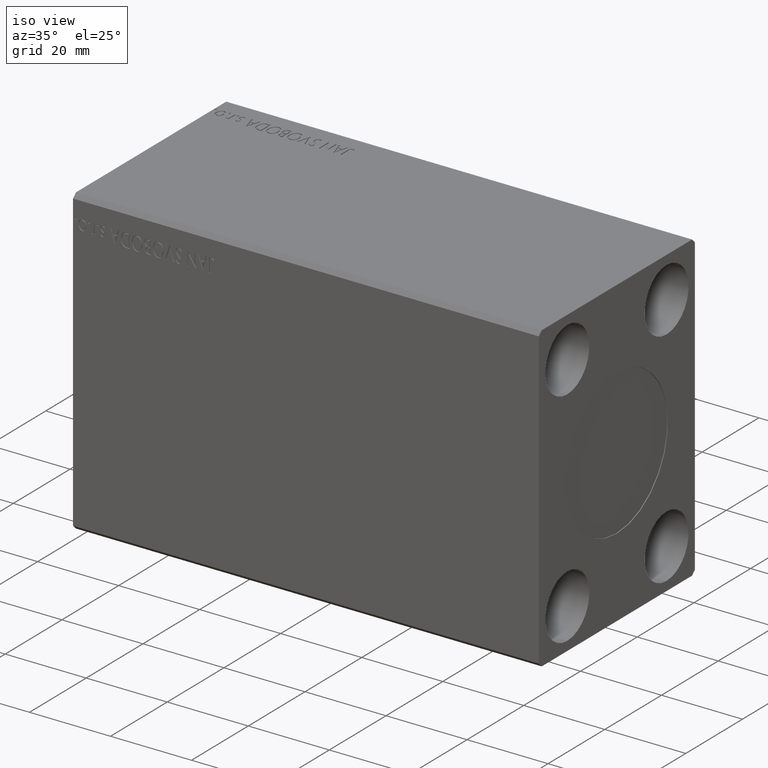
[diagram: clean part render]
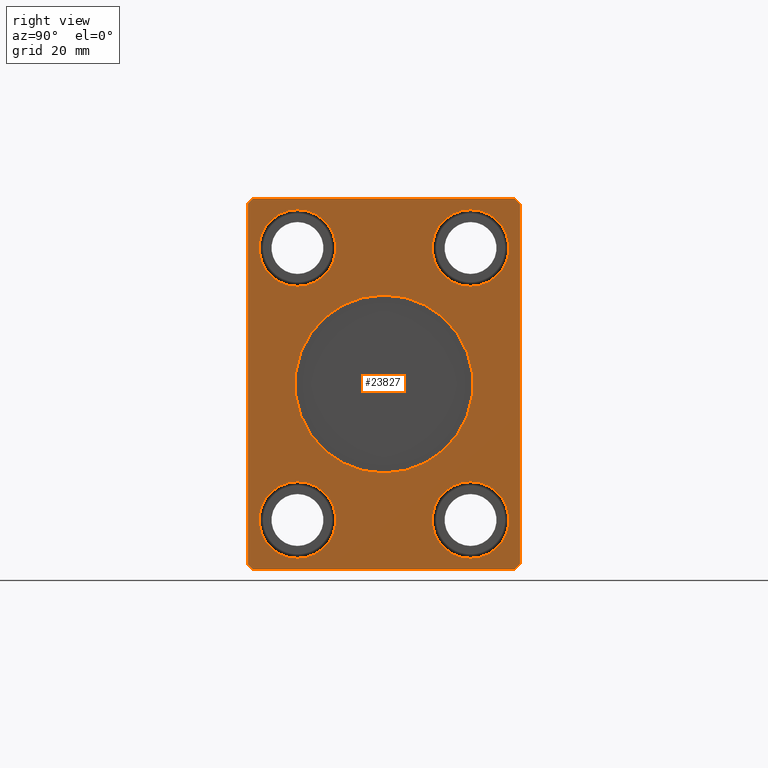
[diagram: tour spotlight — one face highlighted and labeled with its STEP entity id]
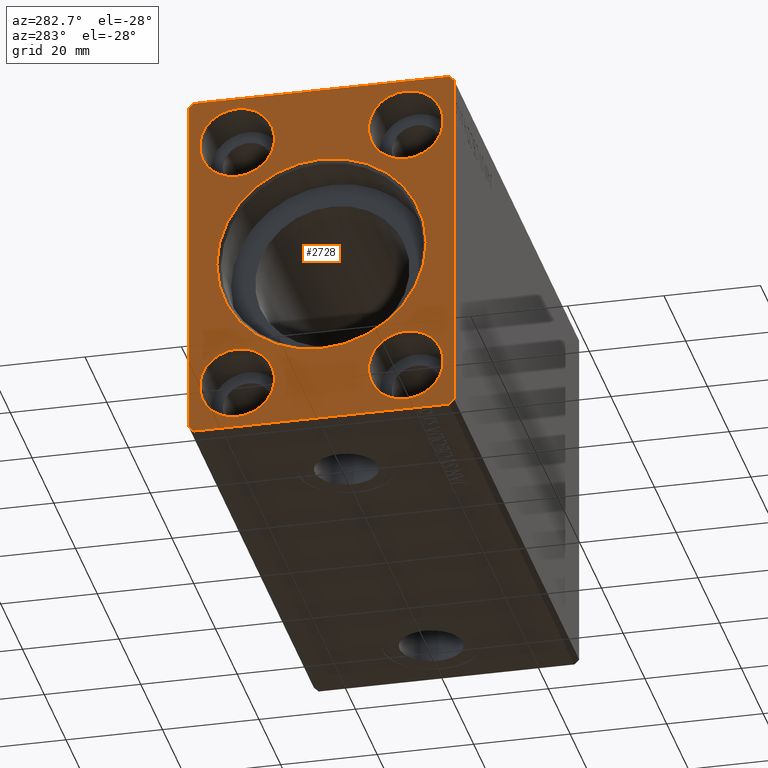
[diagram: tour spotlight — one face highlighted and labeled with its STEP entity id]
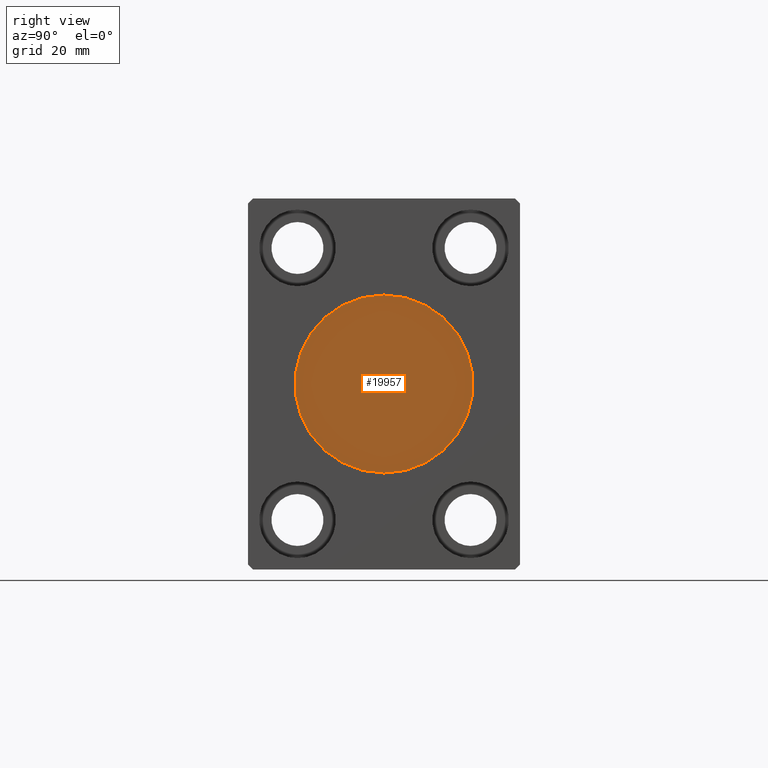
[diagram: tour spotlight — one face highlighted and labeled with its STEP entity id]
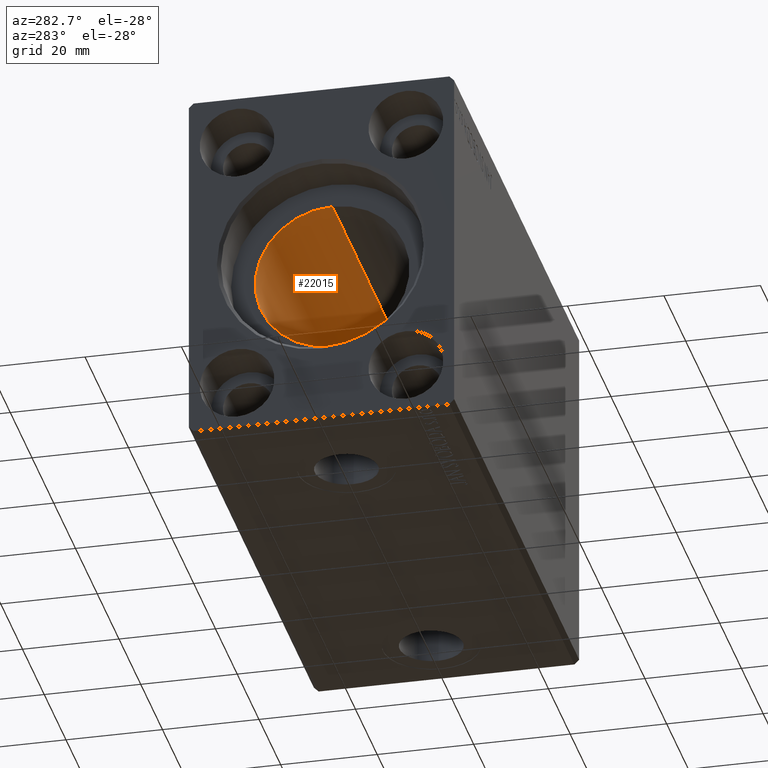
[diagram: tour spotlight — one face highlighted and labeled with its STEP entity id]
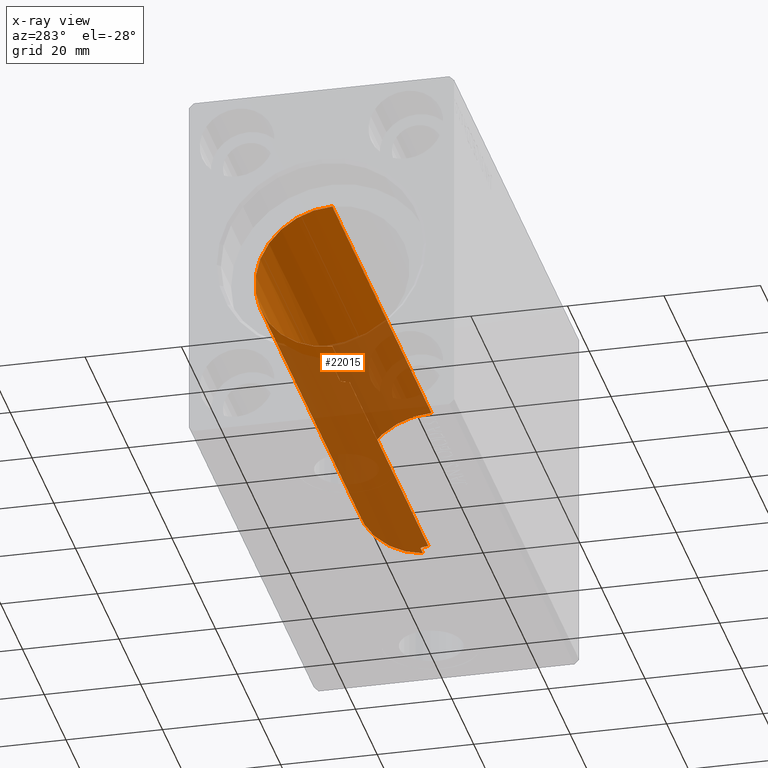
[diagram: x-ray of the same camera — body ghosted, this tour face saturated]
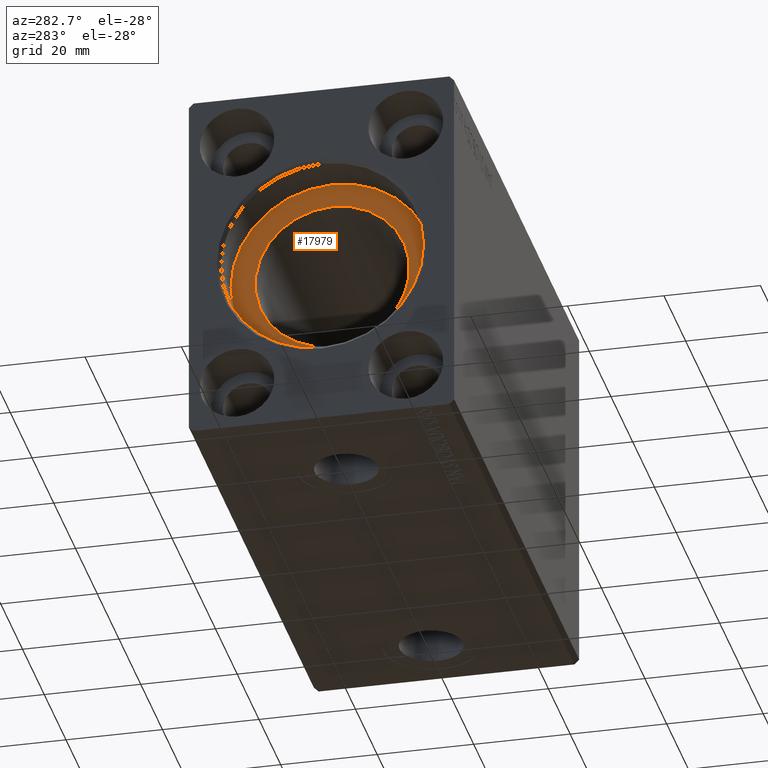
[diagram: tour spotlight — one face highlighted and labeled with its STEP entity id]
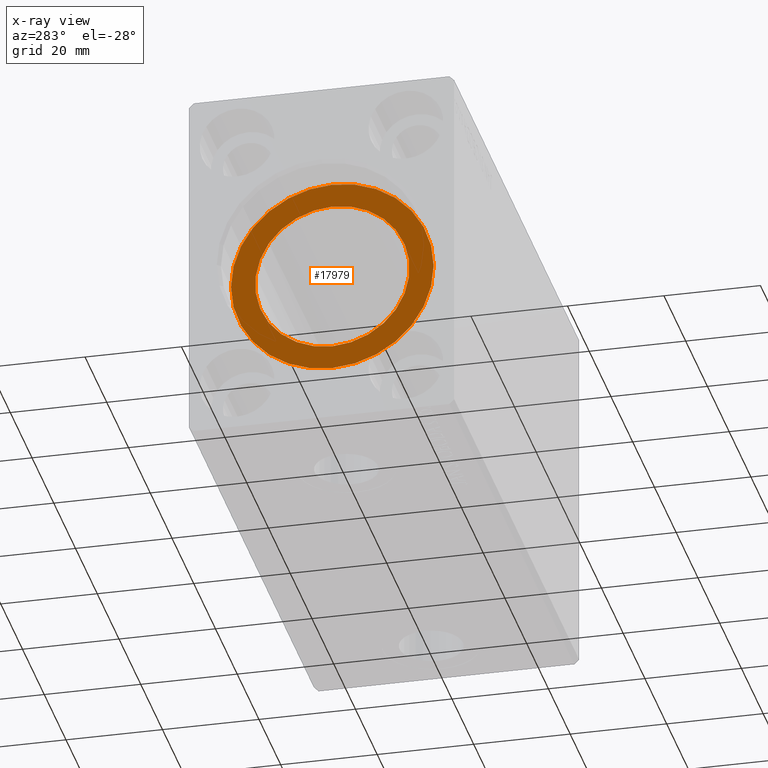
[diagram: x-ray of the same camera — body ghosted, this tour face saturated]
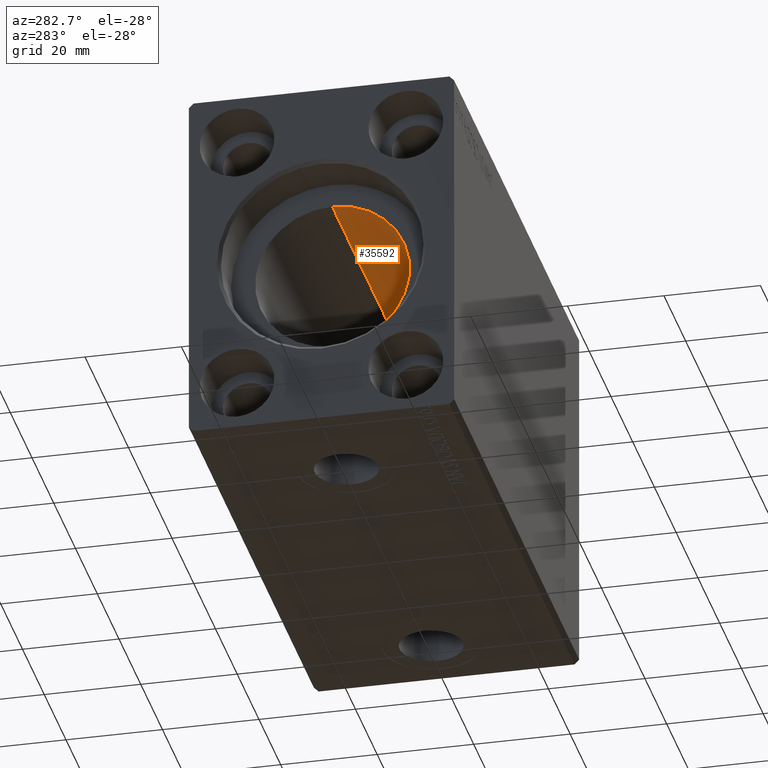
[diagram: tour spotlight — one face highlighted and labeled with its STEP entity id]
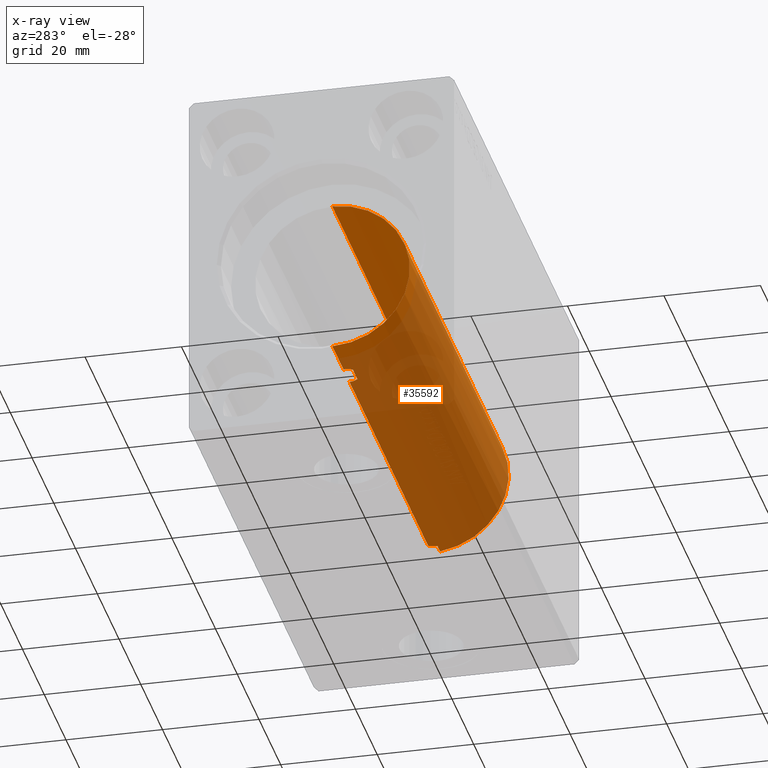
[diagram: x-ray of the same camera — body ghosted, this tour face saturated]
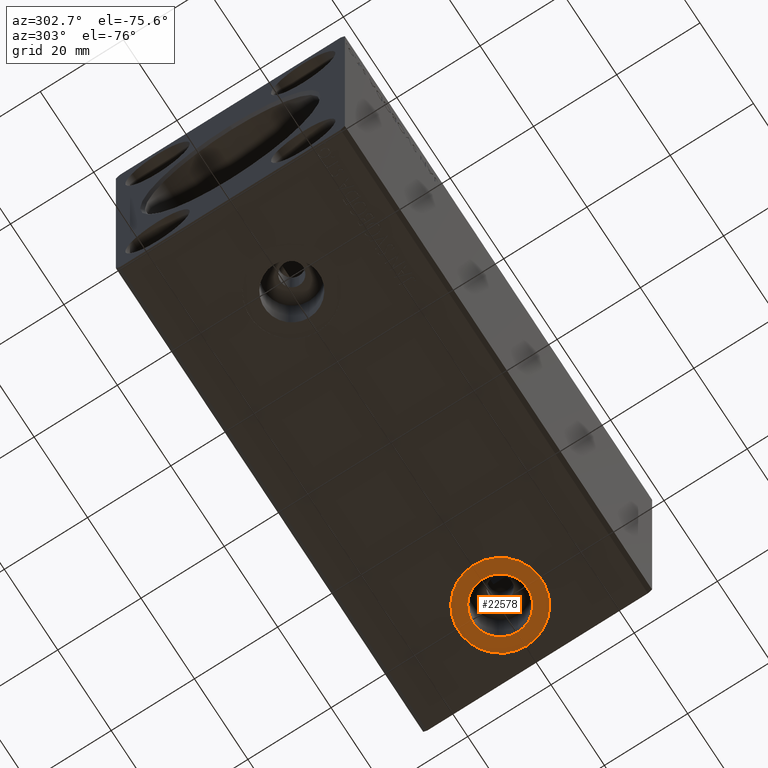
[diagram: tour spotlight — one face highlighted and labeled with its STEP entity id]
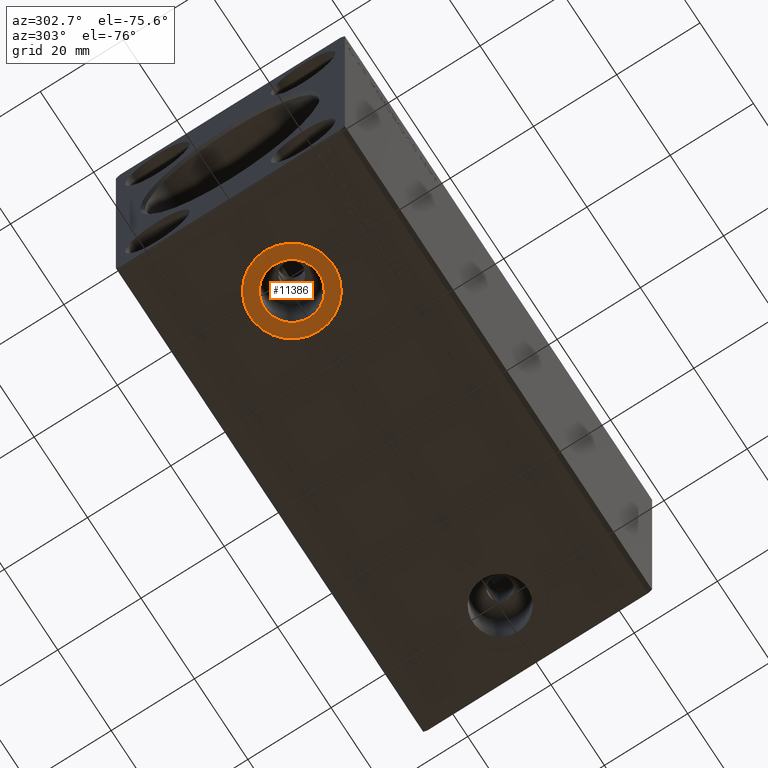
[diagram: tour spotlight — one face highlighted and labeled with its STEP entity id]
A machine part: a face-by-face anatomy tour. The part has 826 B-rep faces; the first image is the clean iso view, then the 8 largest visible faces are spotlighted one at a time (largest first), each with its STEP entity span.

Face 1 — right view, entity #23827. In plain terms, the highlighted planar face has unit normal (1, 0, 0).
Definition (entity closure, byte-faithful):
#112 = VERTEX_POINT ( 'NONE', #20038 ) ;
#336 = EDGE_CURVE ( 'NONE', #21142, #13963, #38318, .T. ) ;
#500 = VECTOR ( 'NONE', #41367, 1000.000000000000114 ) ;
#946 = CARTESIAN_POINT ( 'NONE',  ( 115.0000000000000000, 17.50000000000000000, -27.50000000000000000 ) ) ;
#1375 = EDGE_CURVE ( 'NONE', #31592, #18763, #34211, .T. ) ;
#1508 = VERTEX_POINT ( 'NONE', #32393 ) ;
#1687 = DIRECTION ( 'NONE',  ( 0.000000000000000000, 0.000000000000000000, -1.000000000000000000 ) ) ;
#1843 = DIRECTION ( 'NONE',  ( 0.000000000000000000, -4.752667057470704875E-17, 1.000000000000000000 ) ) ;
#1892 = AXIS2_PLACEMENT_3D ( 'NONE', #16135, #22825, #22605 ) ;
#2057 = AXIS2_PLACEMENT_3D ( 'NONE', #15522, #19182, #38595 ) ;
#2169 = VECTOR ( 'NONE', #37233, 1000.000000000000000 ) ;
#3006 = DIRECTION ( 'NONE',  ( 1.000000000000000000, 0.000000000000000000, 0.000000000000000000 ) ) ;
#3549 = CARTESIAN_POINT ( 'NONE',  ( 115.0000000000000000, -26.50000000000000355, -37.49999999999999289 ) ) ;
#4142 = AXIS2_PLACEMENT_3D ( 'NONE', #35788, #6298, #32572 ) ;
#4162 = DIRECTION ( 'NONE',  ( 1.000000000000000000, 0.000000000000000000, 0.000000000000000000 ) ) ;
#4347 = CARTESIAN_POINT ( 'NONE',  ( 115.0000000000000000, 17.50000000000000000, -19.74999999999999645 ) ) ;
#4723 = LINE ( 'NONE', #14618, #21922 ) ;
#4790 = DIRECTION ( 'NONE',  ( 0.000000000000000000, 0.000000000000000000, -1.000000000000000000 ) ) ;
#5898 = VERTEX_POINT ( 'NONE', #4347 ) ;
#5983 = EDGE_CURVE ( 'NONE', #31625, #34714, #20430, .T. ) ;
#6298 = DIRECTION ( 'NONE',  ( -1.000000000000000000, -0.000000000000000000, -0.000000000000000000 ) ) ;
#6600 = EDGE_CURVE ( 'NONE', #18763, #31592, #41138, .T. ) ;
#6850 = CIRCLE ( 'NONE', #2057, 18.00000000000000000 ) ;
#7085 = EDGE_CURVE ( 'NONE', #34714, #31625, #26655, .T. ) ;
#7287 = FACE_BOUND ( 'NONE', #34602, .T. ) ;
#7492 = CARTESIAN_POINT ( 'NONE',  ( 115.0000000000000000, 17.50000000000000000, 27.50000000000000000 ) ) ;
#8100 = AXIS2_PLACEMENT_3D ( 'NONE', #37517, #34289, #4790 ) ;
#8253 = CARTESIAN_POINT ( 'NONE',  ( 115.0000000000000000, -27.50000000000000355, -36.49999999999998579 ) ) ;
#8544 = ORIENTED_EDGE ( 'NONE', *, *, #9995, .T. ) ;
#8806 = CARTESIAN_POINT ( 'NONE',  ( 115.0000000000000000, -27.50000000000000355, -36.49999999999998579 ) ) ;
#9011 = VECTOR ( 'NONE', #1843, 1000.000000000000000 ) ;
#9272 = ORIENTED_EDGE ( 'NONE', *, *, #21387, .T. ) ;
#9639 = DIRECTION ( 'NONE',  ( 1.000000000000000000, -0.000000000000000000, -0.000000000000000000 ) ) ;
#9995 = EDGE_CURVE ( 'NONE', #21661, #21142, #4723, .T. ) ;
#10337 = AXIS2_PLACEMENT_3D ( 'NONE', #40140, #4162, #39921 ) ;
#10517 = FACE_BOUND ( 'NONE', #17374, .T. ) ;
#10655 = EDGE_CURVE ( 'NONE', #112, #5898, #19890, .T. ) ;
#10684 = ORIENTED_EDGE ( 'NONE', *, *, #16487, .T. ) ;
#11275 = CARTESIAN_POINT ( 'NONE',  ( 115.0000000000000000, -17.50000000000000000, 19.74999999999999645 ) ) ;
#11597 = DIRECTION ( 'NONE',  ( 0.000000000000000000, 4.752667057470705491E-17, -1.000000000000000000 ) ) ;
#11835 = CIRCLE ( 'NONE', #24894, 7.750000000000003553 ) ;
#11937 = ORIENTED_EDGE ( 'NONE', *, *, #26166, .T. ) ;
#12894 = CARTESIAN_POINT ( 'NONE',  ( 115.0000000000000000, 26.50000000000000711, -37.49999999999999289 ) ) ;
#13005 = AXIS2_PLACEMENT_3D ( 'NONE', #946, #14067, #40365 ) ;
#13116 = FACE_BOUND ( 'NONE', #14243, .T. ) ;
#13141 = DIRECTION ( 'NONE',  ( 0.000000000000000000, -0.7071067811865474617, 0.7071067811865474617 ) ) ;
#13735 = CARTESIAN_POINT ( 'NONE',  ( 115.0000000000000000, -26.50000000000000355, -37.49999999999999289 ) ) ;
#13777 = CARTESIAN_POINT ( 'NONE',  ( 115.0000000000000000, -17.50000000000000000, -19.74999999999999645 ) ) ;
#13798 = CIRCLE ( 'NONE', #28940, 7.750000000000003553 ) ;
#13963 = VERTEX_POINT ( 'NONE', #3549 ) ;
#13994 = ORIENTED_EDGE ( 'NONE', *, *, #336, .T. ) ;
#14067 = DIRECTION ( 'NONE',  ( -1.000000000000000000, -0.000000000000000000, -0.000000000000000000 ) ) ;
#14243 = EDGE_LOOP ( 'NONE', ( #18953, #26490 ) ) ;
#14321 = LINE ( 'NONE', #30709, #9011 ) ;
#14435 = CIRCLE ( 'NONE', #4142, 7.750000000000003553 ) ;
#14618 = CARTESIAN_POINT ( 'NONE',  ( 115.0000000000000000, -27.50000000000000711, 36.50000000000000711 ) ) ;
#14808 = DIRECTION ( 'NONE',  ( 1.000000000000000000, -0.000000000000000000, -0.000000000000000000 ) ) ;
#15522 = CARTESIAN_POINT ( 'NONE',  ( 115.0000000000000000, 0.000000000000000000, 0.000000000000000000 ) ) ;
#15935 = CIRCLE ( 'NONE', #10337, 18.00000000000000000 ) ;
#16135 = CARTESIAN_POINT ( 'NONE',  ( 115.0000000000000000, -17.50000000000000000, -27.50000000000000000 ) ) ;
#16487 = EDGE_CURVE ( 'NONE', #24213, #27122, #25664, .T. ) ;
#16619 = ORIENTED_EDGE ( 'NONE', *, *, #10655, .T. ) ;
#16922 = DIRECTION ( 'NONE',  ( 0.000000000000000000, 0.000000000000000000, -1.000000000000000000 ) ) ;
#17231 = VECTOR ( 'NONE', #21581, 1000.000000000000000 ) ;
#17374 = EDGE_LOOP ( 'NONE', ( #40780, #26584 ) ) ;
#18058 = CARTESIAN_POINT ( 'NONE',  ( 115.0000000000000000, -17.50000000000000000, 27.50000000000000000 ) ) ;
#18763 = VERTEX_POINT ( 'NONE', #32262 ) ;
#18953 = ORIENTED_EDGE ( 'NONE', *, *, #6600, .F. ) ;
#19182 = DIRECTION ( 'NONE',  ( 1.000000000000000000, 0.000000000000000000, 0.000000000000000000 ) ) ;
#19224 = ORIENTED_EDGE ( 'NONE', *, *, #31629, .T. ) ;
#19489 = EDGE_LOOP ( 'NONE', ( #11937, #10684, #31325, #8544, #13994, #9272, #30408, #38654 ) ) ;
#19890 = CIRCLE ( 'NONE', #13005, 7.750000000000003553 ) ;
#20038 = CARTESIAN_POINT ( 'NONE',  ( 115.0000000000000000, 17.50000000000000000, -35.25000000000000000 ) ) ;
#20430 = CIRCLE ( 'NONE', #1892, 7.750000000000003553 ) ;
#20659 = CARTESIAN_POINT ( 'NONE',  ( 115.0000000000000000, 26.50000000000000711, -37.49999999999999289 ) ) ;
#20879 = DIRECTION ( 'NONE',  ( 0.000000000000000000, 0.7071067811865474617, 0.7071067811865474617 ) ) ;
#20972 = EDGE_CURVE ( 'NONE', #27122, #21661, #32623, .T. ) ;
#21126 = AXIS2_PLACEMENT_3D ( 'NONE', #7492, #14808, #1687 ) ;
#21142 = VERTEX_POINT ( 'NONE', #8253 ) ;
#21148 = EDGE_CURVE ( 'NONE', #38443, #22247, #13798, .T. ) ;
#21165 = DIRECTION ( 'NONE',  ( 0.000000000000000000, 0.000000000000000000, 1.000000000000000000 ) ) ;
#21387 = EDGE_CURVE ( 'NONE', #13963, #31898, #29907, .T. ) ;
#21452 = EDGE_LOOP ( 'NONE', ( #28886, #34702 ) ) ;
#21581 = DIRECTION ( 'NONE',  ( 0.000000000000000000, -1.000000000000000000, 0.000000000000000000 ) ) ;
#21661 = VERTEX_POINT ( 'NONE', #28579 ) ;
#21871 = EDGE_CURVE ( 'NONE', #1508, #41569, #14321, .T. ) ;
#21922 = VECTOR ( 'NONE', #11597, 1000.000000000000000 ) ;
#22178 = CARTESIAN_POINT ( 'NONE',  ( 115.0000000000000000, 27.50000000000000355, 36.50000000000000711 ) ) ;
#22247 = VERTEX_POINT ( 'NONE', #11275 ) ;
#22531 = AXIS2_PLACEMENT_3D ( 'NONE', #26639, #9639, #16922 ) ;
#22605 = DIRECTION ( 'NONE',  ( 0.000000000000000000, 0.000000000000000000, -1.000000000000000000 ) ) ;
#22640 = CARTESIAN_POINT ( 'NONE',  ( 115.0000000000000000, -17.50000000000000000, -35.25000000000000000 ) ) ;
#22810 = DIRECTION ( 'NONE',  ( 0.000000000000000000, 0.000000000000000000, -1.000000000000000000 ) ) ;
#22825 = DIRECTION ( 'NONE',  ( 1.000000000000000000, -0.000000000000000000, -0.000000000000000000 ) ) ;
#23486 = AXIS2_PLACEMENT_3D ( 'NONE', #40045, #3006, #22810 ) ;
#23827 = ADVANCED_FACE ( 'NONE', ( #10517, #33353, #7287, #36164, #42429, #13116 ), #26886, .T. ) ;
#24213 = VERTEX_POINT ( 'NONE', #37767 ) ;
#24894 = AXIS2_PLACEMENT_3D ( 'NONE', #18058, #30996, #30776 ) ;
#25512 = VECTOR ( 'NONE', #20879, 1000.000000000000114 ) ;
#25664 = LINE ( 'NONE', #28468, #17231 ) ;
#25838 = VERTEX_POINT ( 'NONE', #30627 ) ;
#25930 = CARTESIAN_POINT ( 'NONE',  ( 115.0000000000000000, -26.50000000000000711, 37.50000000000000711 ) ) ;
#26094 = CARTESIAN_POINT ( 'NONE',  ( 115.0000000000000000, 17.50000000000000000, 35.25000000000000000 ) ) ;
#26166 = EDGE_CURVE ( 'NONE', #41569, #24213, #29935, .T. ) ;
#26490 = ORIENTED_EDGE ( 'NONE', *, *, #1375, .F. ) ;
#26584 = ORIENTED_EDGE ( 'NONE', *, *, #38357, .F. ) ;
#26639 = CARTESIAN_POINT ( 'NONE',  ( 115.0000000000000000, 17.50000000000000000, 27.50000000000000000 ) ) ;
#26655 = CIRCLE ( 'NONE', #8100, 7.750000000000003553 ) ;
#26886 = PLANE ( 'NONE',  #23486 ) ;
#27122 = VERTEX_POINT ( 'NONE', #30041 ) ;
#27989 = LINE ( 'NONE', #20659, #25512 ) ;
#28468 = CARTESIAN_POINT ( 'NONE',  ( 115.0000000000000000, 26.50000000000000355, 37.50000000000000711 ) ) ;
#28579 = CARTESIAN_POINT ( 'NONE',  ( 115.0000000000000000, -27.50000000000000711, 36.50000000000000711 ) ) ;
#28886 = ORIENTED_EDGE ( 'NONE', *, *, #5983, .F. ) ;
#28940 = AXIS2_PLACEMENT_3D ( 'NONE', #30881, #37342, #21165 ) ;
#29907 = LINE ( 'NONE', #13735, #2169 ) ;
#29935 = LINE ( 'NONE', #30138, #30142 ) ;
#30041 = CARTESIAN_POINT ( 'NONE',  ( 115.0000000000000000, -26.50000000000000711, 37.50000000000000711 ) ) ;
#30138 = CARTESIAN_POINT ( 'NONE',  ( 115.0000000000000000, 27.50000000000000355, 36.50000000000000711 ) ) ;
#30142 = VECTOR ( 'NONE', #13141, 1000.000000000000114 ) ;
#30408 = ORIENTED_EDGE ( 'NONE', *, *, #34817, .T. ) ;
#30627 = CARTESIAN_POINT ( 'NONE',  ( 115.0000000000000000, 2.204364238465235428E-15, 18.00000000000000000 ) ) ;
#30663 = EDGE_CURVE ( 'NONE', #38374, #25838, #6850, .T. ) ;
#30709 = CARTESIAN_POINT ( 'NONE',  ( 115.0000000000000000, 27.50000000000000711, -36.49999999999999289 ) ) ;
#30776 = DIRECTION ( 'NONE',  ( 0.000000000000000000, 0.000000000000000000, 1.000000000000000000 ) ) ;
#30881 = CARTESIAN_POINT ( 'NONE',  ( 115.0000000000000000, -17.50000000000000000, 27.50000000000000000 ) ) ;
#30996 = DIRECTION ( 'NONE',  ( -1.000000000000000000, -0.000000000000000000, -0.000000000000000000 ) ) ;
#31325 = ORIENTED_EDGE ( 'NONE', *, *, #20972, .T. ) ;
#31592 = VERTEX_POINT ( 'NONE', #26094 ) ;
#31625 = VERTEX_POINT ( 'NONE', #22640 ) ;
#31629 = EDGE_CURVE ( 'NONE', #5898, #112, #14435, .T. ) ;
#31694 = ORIENTED_EDGE ( 'NONE', *, *, #41778, .T. ) ;
#31898 = VERTEX_POINT ( 'NONE', #12894 ) ;
#32262 = CARTESIAN_POINT ( 'NONE',  ( 115.0000000000000000, 17.50000000000000000, 19.74999999999999645 ) ) ;
#32393 = CARTESIAN_POINT ( 'NONE',  ( 115.0000000000000000, 27.50000000000000711, -36.49999999999999289 ) ) ;
#32572 = DIRECTION ( 'NONE',  ( 0.000000000000000000, 0.000000000000000000, 1.000000000000000000 ) ) ;
#32623 = LINE ( 'NONE', #25930, #38568 ) ;
#33353 = FACE_BOUND ( 'NONE', #35941, .T. ) ;
#33662 = CARTESIAN_POINT ( 'NONE',  ( 115.0000000000000000, 0.000000000000000000, -18.00000000000000000 ) ) ;
#34211 = CIRCLE ( 'NONE', #21126, 7.750000000000003553 ) ;
#34289 = DIRECTION ( 'NONE',  ( 1.000000000000000000, -0.000000000000000000, -0.000000000000000000 ) ) ;
#34602 = EDGE_LOOP ( 'NONE', ( #16619, #19224 ) ) ;
#34702 = ORIENTED_EDGE ( 'NONE', *, *, #7085, .F. ) ;
#34714 = VERTEX_POINT ( 'NONE', #13777 ) ;
#34817 = EDGE_CURVE ( 'NONE', #31898, #1508, #27989, .T. ) ;
#35788 = CARTESIAN_POINT ( 'NONE',  ( 115.0000000000000000, 17.50000000000000000, -27.50000000000000000 ) ) ;
#35845 = DIRECTION ( 'NONE',  ( 0.000000000000000000, -0.7071067811865474617, -0.7071067811865474617 ) ) ;
#35941 = EDGE_LOOP ( 'NONE', ( #31694, #42286 ) ) ;
#36164 = FACE_OUTER_BOUND ( 'NONE', #19489, .T. ) ;
#37233 = DIRECTION ( 'NONE',  ( 0.000000000000000000, 1.000000000000000000, 0.000000000000000000 ) ) ;
#37342 = DIRECTION ( 'NONE',  ( -1.000000000000000000, -0.000000000000000000, -0.000000000000000000 ) ) ;
#37517 = CARTESIAN_POINT ( 'NONE',  ( 115.0000000000000000, -17.50000000000000000, -27.50000000000000000 ) ) ;
#37767 = CARTESIAN_POINT ( 'NONE',  ( 115.0000000000000000, 26.50000000000000355, 37.50000000000000711 ) ) ;
#38318 = LINE ( 'NONE', #8806, #500 ) ;
#38357 = EDGE_CURVE ( 'NONE', #25838, #38374, #15935, .T. ) ;
#38374 = VERTEX_POINT ( 'NONE', #33662 ) ;
#38443 = VERTEX_POINT ( 'NONE', #41841 ) ;
#38568 = VECTOR ( 'NONE', #35845, 1000.000000000000114 ) ;
#38595 = DIRECTION ( 'NONE',  ( 0.000000000000000000, 0.000000000000000000, -1.000000000000000000 ) ) ;
#38654 = ORIENTED_EDGE ( 'NONE', *, *, #21871, .T. ) ;
#39921 = DIRECTION ( 'NONE',  ( 0.000000000000000000, 0.000000000000000000, -1.000000000000000000 ) ) ;
#40045 = CARTESIAN_POINT ( 'NONE',  ( 115.0000000000000000, 0.000000000000000000, 0.000000000000000000 ) ) ;
#40140 = CARTESIAN_POINT ( 'NONE',  ( 115.0000000000000000, 0.000000000000000000, 0.000000000000000000 ) ) ;
#40365 = DIRECTION ( 'NONE',  ( 0.000000000000000000, 0.000000000000000000, 1.000000000000000000 ) ) ;
#40780 = ORIENTED_EDGE ( 'NONE', *, *, #30663, .F. ) ;
#41138 = CIRCLE ( 'NONE', #22531, 7.750000000000003553 ) ;
#41367 = DIRECTION ( 'NONE',  ( 0.000000000000000000, 0.7071067811865451302, -0.7071067811865500152 ) ) ;
#41569 = VERTEX_POINT ( 'NONE', #22178 ) ;
#41778 = EDGE_CURVE ( 'NONE', #22247, #38443, #11835, .T. ) ;
#41841 = CARTESIAN_POINT ( 'NONE',  ( 115.0000000000000000, -17.50000000000000000, 35.25000000000000000 ) ) ;
#42286 = ORIENTED_EDGE ( 'NONE', *, *, #21148, .T. ) ;
#42429 = FACE_BOUND ( 'NONE', #21452, .T. ) ;

Face 2 — auxiliary view, entity #2728. In plain terms, the highlighted planar face has unit normal (1, 0, 0).
Definition (entity closure, byte-faithful):
#185 = FACE_BOUND ( 'NONE', #6855, .T. ) ;
#375 = VERTEX_POINT ( 'NONE', #25180 ) ;
#944 = CARTESIAN_POINT ( 'NONE',  ( 0.000000000000000000, -26.50000000000000355, -37.49999999999999289 ) ) ;
#1136 = EDGE_CURVE ( 'NONE', #30371, #36174, #40417, .T. ) ;
#1171 = AXIS2_PLACEMENT_3D ( 'NONE', #2373, #15491, #17716 ) ;
#1398 = VERTEX_POINT ( 'NONE', #17817 ) ;
#1469 = VERTEX_POINT ( 'NONE', #36245 ) ;
#2211 = CARTESIAN_POINT ( 'NONE',  ( 0.000000000000000000, 0.000000000000000000, 0.000000000000000000 ) ) ;
#2307 = CARTESIAN_POINT ( 'NONE',  ( 0.000000000000000000, 17.50000000000000000, -35.25000000000000000 ) ) ;
#2373 = CARTESIAN_POINT ( 'NONE',  ( 0.000000000000000000, 17.50000000000000000, 27.50000000000000000 ) ) ;
#2464 = EDGE_CURVE ( 'NONE', #36174, #30371, #40324, .T. ) ;
#2532 = ORIENTED_EDGE ( 'NONE', *, *, #22175, .F. ) ;
#2565 = FACE_OUTER_BOUND ( 'NONE', #31330, .T. ) ;
#2728 = ADVANCED_FACE ( 'NONE', ( #38961, #9878, #32076, #2565, #185, #16534 ), #15907, .F. ) ;
#4392 = CARTESIAN_POINT ( 'NONE',  ( 0.000000000000000000, -26.50000000000000355, -37.49999999999999289 ) ) ;
#4613 = DIRECTION ( 'NONE',  ( 0.000000000000000000, 4.752667057470705491E-17, -1.000000000000000000 ) ) ;
#4917 = CIRCLE ( 'NONE', #28978, 7.750000000000003553 ) ;
#4970 = EDGE_CURVE ( 'NONE', #15717, #8747, #6688, .T. ) ;
#5041 = EDGE_CURVE ( 'NONE', #10918, #22828, #8737, .T. ) ;
#5050 = DIRECTION ( 'NONE',  ( 0.000000000000000000, 1.000000000000000000, 0.000000000000000000 ) ) ;
#5103 = CARTESIAN_POINT ( 'NONE',  ( 0.000000000000000000, -26.50000000000000711, 37.50000000000000711 ) ) ;
#5439 = DIRECTION ( 'NONE',  ( 1.000000000000000000, 0.000000000000000000, 0.000000000000000000 ) ) ;
#5631 = CIRCLE ( 'NONE', #41434, 7.750000000000003553 ) ;
#5755 = CARTESIAN_POINT ( 'NONE',  ( 0.000000000000000000, -27.50000000000000711, 36.50000000000000711 ) ) ;
#5805 = DIRECTION ( 'NONE',  ( 0.000000000000000000, 0.000000000000000000, -1.000000000000000000 ) ) ;
#5818 = CARTESIAN_POINT ( 'NONE',  ( 0.000000000000000000, 17.50000000000000000, -27.50000000000000000 ) ) ;
#5825 = DIRECTION ( 'NONE',  ( 0.000000000000000000, 0.000000000000000000, 1.000000000000000000 ) ) ;
#6086 = EDGE_CURVE ( 'NONE', #33100, #20528, #31168, .T. ) ;
#6206 = EDGE_CURVE ( 'NONE', #18080, #33100, #35868, .T. ) ;
#6526 = ORIENTED_EDGE ( 'NONE', *, *, #6206, .F. ) ;
#6688 = CIRCLE ( 'NONE', #1171, 7.750000000000003553 ) ;
#6798 = ORIENTED_EDGE ( 'NONE', *, *, #13360, .F. ) ;
#6855 = EDGE_LOOP ( 'NONE', ( #33504, #20320 ) ) ;
#7401 = LINE ( 'NONE', #24209, #27461 ) ;
#7672 = CARTESIAN_POINT ( 'NONE',  ( 0.000000000000000000, -17.50000000000000000, 27.50000000000000000 ) ) ;
#8042 = CARTESIAN_POINT ( 'NONE',  ( 0.000000000000000000, 26.50000000000000355, 37.50000000000000711 ) ) ;
#8112 = CARTESIAN_POINT ( 'NONE',  ( 0.000000000000000000, -26.50000000000000711, 37.50000000000000711 ) ) ;
#8269 = CIRCLE ( 'NONE', #21325, 7.750000000000003553 ) ;
#8339 = CARTESIAN_POINT ( 'NONE',  ( 0.000000000000000000, 17.50000000000000000, 35.25000000000000000 ) ) ;
#8737 = CIRCLE ( 'NONE', #11507, 7.750000000000003553 ) ;
#8747 = VERTEX_POINT ( 'NONE', #41937 ) ;
#8900 = AXIS2_PLACEMENT_3D ( 'NONE', #21803, #11271, #24403 ) ;
#8942 = CARTESIAN_POINT ( 'NONE',  ( 0.000000000000000000, 26.50000000000000355, 37.50000000000000711 ) ) ;
#9072 = ORIENTED_EDGE ( 'NONE', *, *, #6086, .F. ) ;
#9361 = CARTESIAN_POINT ( 'NONE',  ( 0.000000000000000000, 26.50000000000000711, -37.49999999999999289 ) ) ;
#9535 = VERTEX_POINT ( 'NONE', #20256 ) ;
#9680 = DIRECTION ( 'NONE',  ( 0.000000000000000000, 0.000000000000000000, 1.000000000000000000 ) ) ;
#9878 = FACE_BOUND ( 'NONE', #38248, .T. ) ;
#10056 = AXIS2_PLACEMENT_3D ( 'NONE', #2211, #5439, #18560 ) ;
#10066 = LINE ( 'NONE', #26442, #36485 ) ;
#10638 = EDGE_CURVE ( 'NONE', #20528, #37433, #7401, .T. ) ;
#10918 = VERTEX_POINT ( 'NONE', #32900 ) ;
#11023 = ORIENTED_EDGE ( 'NONE', *, *, #1136, .T. ) ;
#11271 = DIRECTION ( 'NONE',  ( -1.000000000000000000, 0.000000000000000000, 0.000000000000000000 ) ) ;
#11507 = AXIS2_PLACEMENT_3D ( 'NONE', #5818, #35742, #9680 ) ;
#11867 = VERTEX_POINT ( 'NONE', #30101 ) ;
#13348 = ORIENTED_EDGE ( 'NONE', *, *, #5041, .F. ) ;
#13360 = EDGE_CURVE ( 'NONE', #1469, #18080, #16857, .T. ) ;
#14030 = VERTEX_POINT ( 'NONE', #944 ) ;
#15318 = LINE ( 'NONE', #28668, #37880 ) ;
#15491 = DIRECTION ( 'NONE',  ( 1.000000000000000000, -0.000000000000000000, -0.000000000000000000 ) ) ;
#15717 = VERTEX_POINT ( 'NONE', #8339 ) ;
#15907 = PLANE ( 'NONE',  #24518 ) ;
#16199 = ORIENTED_EDGE ( 'NONE', *, *, #42186, .F. ) ;
#16534 = FACE_BOUND ( 'NONE', #22934, .T. ) ;
#16857 = LINE ( 'NONE', #40154, #28204 ) ;
#17140 = CARTESIAN_POINT ( 'NONE',  ( 0.000000000000000000, -27.50000000000000355, -36.49999999999998579 ) ) ;
#17199 = ORIENTED_EDGE ( 'NONE', *, *, #37402, .F. ) ;
#17316 = EDGE_CURVE ( 'NONE', #11867, #1398, #4917, .T. ) ;
#17441 = DIRECTION ( 'NONE',  ( 0.000000000000000000, 0.000000000000000000, -1.000000000000000000 ) ) ;
#17644 = ORIENTED_EDGE ( 'NONE', *, *, #30145, .F. ) ;
#17716 = DIRECTION ( 'NONE',  ( 0.000000000000000000, 0.000000000000000000, -1.000000000000000000 ) ) ;
#17817 = CARTESIAN_POINT ( 'NONE',  ( 0.000000000000000000, -17.50000000000000000, -19.74999999999999645 ) ) ;
#17959 = VECTOR ( 'NONE', #5050, 1000.000000000000000 ) ;
#18080 = VERTEX_POINT ( 'NONE', #8042 ) ;
#18380 = EDGE_CURVE ( 'NONE', #20665, #9535, #37931, .T. ) ;
#18560 = DIRECTION ( 'NONE',  ( 0.000000000000000000, 0.000000000000000000, -1.000000000000000000 ) ) ;
#18690 = DIRECTION ( 'NONE',  ( 0.000000000000000000, 0.000000000000000000, -1.000000000000000000 ) ) ;
#18791 = ORIENTED_EDGE ( 'NONE', *, *, #37067, .F. ) ;
#19337 = AXIS2_PLACEMENT_3D ( 'NONE', #28235, #21558, #5825 ) ;
#19344 = AXIS2_PLACEMENT_3D ( 'NONE', #38445, #42545, #28538 ) ;
#19485 = DIRECTION ( 'NONE',  ( 0.000000000000000000, -1.000000000000000000, 0.000000000000000000 ) ) ;
#20028 = VECTOR ( 'NONE', #31483, 1000.000000000000114 ) ;
#20256 = CARTESIAN_POINT ( 'NONE',  ( 0.000000000000000000, -17.50000000000000000, 35.25000000000000000 ) ) ;
#20320 = ORIENTED_EDGE ( 'NONE', *, *, #17316, .T. ) ;
#20528 = VERTEX_POINT ( 'NONE', #5755 ) ;
#20665 = VERTEX_POINT ( 'NONE', #39975 ) ;
#20797 = DIRECTION ( 'NONE',  ( -1.000000000000000000, 0.000000000000000000, 0.000000000000000000 ) ) ;
#21235 = ORIENTED_EDGE ( 'NONE', *, *, #2464, .T. ) ;
#21325 = AXIS2_PLACEMENT_3D ( 'NONE', #35060, #39141, #18690 ) ;
#21357 = LINE ( 'NONE', #28251, #20028 ) ;
#21558 = DIRECTION ( 'NONE',  ( -1.000000000000000000, 0.000000000000000000, 0.000000000000000000 ) ) ;
#21699 = CARTESIAN_POINT ( 'NONE',  ( 0.000000000000000000, 0.000000000000000000, 21.70000000000003837 ) ) ;
#21803 = CARTESIAN_POINT ( 'NONE',  ( 0.000000000000000000, 17.50000000000000000, -27.50000000000000000 ) ) ;
#21988 = DIRECTION ( 'NONE',  ( 0.000000000000000000, 0.7071067811865474617, 0.7071067811865474617 ) ) ;
#22175 = EDGE_CURVE ( 'NONE', #14030, #25171, #41013, .T. ) ;
#22828 = VERTEX_POINT ( 'NONE', #2307 ) ;
#22934 = EDGE_LOOP ( 'NONE', ( #38107, #34281 ) ) ;
#23206 = VECTOR ( 'NONE', #25104, 1000.000000000000114 ) ;
#24209 = CARTESIAN_POINT ( 'NONE',  ( 0.000000000000000000, -27.50000000000000711, 36.50000000000000711 ) ) ;
#24403 = DIRECTION ( 'NONE',  ( 0.000000000000000000, 0.000000000000000000, 1.000000000000000000 ) ) ;
#24518 = AXIS2_PLACEMENT_3D ( 'NONE', #29704, #32515, #5805 ) ;
#24552 = DIRECTION ( 'NONE',  ( 1.000000000000000000, 0.000000000000000000, 0.000000000000000000 ) ) ;
#25104 = DIRECTION ( 'NONE',  ( 0.000000000000000000, -0.7071067811865474617, -0.7071067811865474617 ) ) ;
#25171 = VERTEX_POINT ( 'NONE', #9361 ) ;
#25180 = CARTESIAN_POINT ( 'NONE',  ( 0.000000000000000000, 27.50000000000000711, -36.49999999999999289 ) ) ;
#26442 = CARTESIAN_POINT ( 'NONE',  ( 0.000000000000000000, 27.50000000000000711, -36.49999999999999289 ) ) ;
#26522 = DIRECTION ( 'NONE',  ( 1.000000000000000000, -0.000000000000000000, -0.000000000000000000 ) ) ;
#27381 = CARTESIAN_POINT ( 'NONE',  ( 0.000000000000000000, 2.657483554149761471E-15, -21.70000000000003837 ) ) ;
#27461 = VECTOR ( 'NONE', #4613, 1000.000000000000000 ) ;
#27580 = CARTESIAN_POINT ( 'NONE',  ( 0.000000000000000000, 0.000000000000000000, 0.000000000000000000 ) ) ;
#27784 = ORIENTED_EDGE ( 'NONE', *, *, #18380, .F. ) ;
#28026 = AXIS2_PLACEMENT_3D ( 'NONE', #27580, #24552, #17441 ) ;
#28204 = VECTOR ( 'NONE', #30667, 1000.000000000000114 ) ;
#28235 = CARTESIAN_POINT ( 'NONE',  ( 0.000000000000000000, -17.50000000000000000, 27.50000000000000000 ) ) ;
#28251 = CARTESIAN_POINT ( 'NONE',  ( 0.000000000000000000, -27.50000000000000355, -36.49999999999998579 ) ) ;
#28538 = DIRECTION ( 'NONE',  ( 0.000000000000000000, 0.000000000000000000, -1.000000000000000000 ) ) ;
#28668 = CARTESIAN_POINT ( 'NONE',  ( 0.000000000000000000, 26.50000000000000711, -37.49999999999999289 ) ) ;
#28978 = AXIS2_PLACEMENT_3D ( 'NONE', #29333, #26522, #29963 ) ;
#29333 = CARTESIAN_POINT ( 'NONE',  ( 0.000000000000000000, -17.50000000000000000, -27.50000000000000000 ) ) ;
#29704 = CARTESIAN_POINT ( 'NONE',  ( 0.000000000000000000, 0.000000000000000000, 0.000000000000000000 ) ) ;
#29963 = DIRECTION ( 'NONE',  ( 0.000000000000000000, 0.000000000000000000, -1.000000000000000000 ) ) ;
#30040 = ORIENTED_EDGE ( 'NONE', *, *, #10638, .F. ) ;
#30101 = CARTESIAN_POINT ( 'NONE',  ( 0.000000000000000000, -17.50000000000000000, -35.25000000000000000 ) ) ;
#30145 = EDGE_CURVE ( 'NONE', #22828, #10918, #33654, .T. ) ;
#30371 = VERTEX_POINT ( 'NONE', #21699 ) ;
#30667 = DIRECTION ( 'NONE',  ( 0.000000000000000000, -0.7071067811865474617, 0.7071067811865474617 ) ) ;
#31168 = LINE ( 'NONE', #5103, #23206 ) ;
#31330 = EDGE_LOOP ( 'NONE', ( #6798, #17199, #37796, #2532, #18791, #30040, #9072, #6526 ) ) ;
#31483 = DIRECTION ( 'NONE',  ( 0.000000000000000000, 0.7071067811865451302, -0.7071067811865500152 ) ) ;
#32076 = FACE_BOUND ( 'NONE', #36573, .T. ) ;
#32515 = DIRECTION ( 'NONE',  ( 1.000000000000000000, 0.000000000000000000, 0.000000000000000000 ) ) ;
#32900 = CARTESIAN_POINT ( 'NONE',  ( 0.000000000000000000, 17.50000000000000000, -19.74999999999999645 ) ) ;
#32935 = EDGE_CURVE ( 'NONE', #1398, #11867, #8269, .T. ) ;
#33100 = VERTEX_POINT ( 'NONE', #8112 ) ;
#33504 = ORIENTED_EDGE ( 'NONE', *, *, #32935, .T. ) ;
#33654 = CIRCLE ( 'NONE', #8900, 7.750000000000003553 ) ;
#34238 = VECTOR ( 'NONE', #19485, 1000.000000000000000 ) ;
#34281 = ORIENTED_EDGE ( 'NONE', *, *, #40182, .T. ) ;
#35060 = CARTESIAN_POINT ( 'NONE',  ( 0.000000000000000000, -17.50000000000000000, -27.50000000000000000 ) ) ;
#35742 = DIRECTION ( 'NONE',  ( -1.000000000000000000, 0.000000000000000000, 0.000000000000000000 ) ) ;
#35868 = LINE ( 'NONE', #8942, #34238 ) ;
#36174 = VERTEX_POINT ( 'NONE', #27381 ) ;
#36245 = CARTESIAN_POINT ( 'NONE',  ( 0.000000000000000000, 27.50000000000000355, 36.50000000000000711 ) ) ;
#36485 = VECTOR ( 'NONE', #39795, 1000.000000000000000 ) ;
#36573 = EDGE_LOOP ( 'NONE', ( #11023, #21235 ) ) ;
#36621 = EDGE_LOOP ( 'NONE', ( #16199, #27784 ) ) ;
#37067 = EDGE_CURVE ( 'NONE', #37433, #14030, #21357, .T. ) ;
#37402 = EDGE_CURVE ( 'NONE', #375, #1469, #10066, .T. ) ;
#37433 = VERTEX_POINT ( 'NONE', #17140 ) ;
#37796 = ORIENTED_EDGE ( 'NONE', *, *, #37833, .F. ) ;
#37833 = EDGE_CURVE ( 'NONE', #25171, #375, #15318, .T. ) ;
#37880 = VECTOR ( 'NONE', #21988, 1000.000000000000114 ) ;
#37931 = CIRCLE ( 'NONE', #19337, 7.750000000000003553 ) ;
#38107 = ORIENTED_EDGE ( 'NONE', *, *, #4970, .T. ) ;
#38248 = EDGE_LOOP ( 'NONE', ( #13348, #17644 ) ) ;
#38445 = CARTESIAN_POINT ( 'NONE',  ( 0.000000000000000000, 17.50000000000000000, 27.50000000000000000 ) ) ;
#38624 = DIRECTION ( 'NONE',  ( 0.000000000000000000, 0.000000000000000000, 1.000000000000000000 ) ) ;
#38961 = FACE_BOUND ( 'NONE', #36621, .T. ) ;
#39141 = DIRECTION ( 'NONE',  ( 1.000000000000000000, -0.000000000000000000, -0.000000000000000000 ) ) ;
#39795 = DIRECTION ( 'NONE',  ( 0.000000000000000000, -4.752667057470704875E-17, 1.000000000000000000 ) ) ;
#39975 = CARTESIAN_POINT ( 'NONE',  ( 0.000000000000000000, -17.50000000000000000, 19.74999999999999645 ) ) ;
#40154 = CARTESIAN_POINT ( 'NONE',  ( 0.000000000000000000, 27.50000000000000355, 36.50000000000000711 ) ) ;
#40182 = EDGE_CURVE ( 'NONE', #8747, #15717, #40685, .T. ) ;
#40324 = CIRCLE ( 'NONE', #10056, 21.70000000000003837 ) ;
#40417 = CIRCLE ( 'NONE', #28026, 21.70000000000003837 ) ;
#40685 = CIRCLE ( 'NONE', #19344, 7.750000000000003553 ) ;
#41013 = LINE ( 'NONE', #4392, #17959 ) ;
#41434 = AXIS2_PLACEMENT_3D ( 'NONE', #7672, #20797, #38624 ) ;
#41937 = CARTESIAN_POINT ( 'NONE',  ( 0.000000000000000000, 17.50000000000000000, 19.74999999999999645 ) ) ;
#42186 = EDGE_CURVE ( 'NONE', #9535, #20665, #5631, .T. ) ;
#42545 = DIRECTION ( 'NONE',  ( 1.000000000000000000, -0.000000000000000000, -0.000000000000000000 ) ) ;

Face 3 — right view, entity #19957. In plain terms, the highlighted planar face has unit normal (1, 0, 0).
Definition (entity closure, byte-faithful):
#2591 = AXIS2_PLACEMENT_3D ( 'NONE', #38301, #25598, #9426 ) ;
#3361 = PLANE ( 'NONE',  #10424 ) ;
#6488 = EDGE_CURVE ( 'NONE', #35306, #34338, #42518, .T. ) ;
#7427 = DIRECTION ( 'NONE',  ( 0.000000000000000000, 0.000000000000000000, -1.000000000000000000 ) ) ;
#9426 = DIRECTION ( 'NONE',  ( 0.000000000000000000, 0.000000000000000000, -1.000000000000000000 ) ) ;
#10424 = AXIS2_PLACEMENT_3D ( 'NONE', #16477, #34527, #7427 ) ;
#11697 = DIRECTION ( 'NONE',  ( 1.000000000000000000, 0.000000000000000000, 0.000000000000000000 ) ) ;
#15987 = EDGE_LOOP ( 'NONE', ( #20365, #32759 ) ) ;
#16215 = AXIS2_PLACEMENT_3D ( 'NONE', #24198, #11697, #34746 ) ;
#16477 = CARTESIAN_POINT ( 'NONE',  ( 114.7999999999999972, 0.000000000000000000, 0.000000000000000000 ) ) ;
#19957 = ADVANCED_FACE ( 'NONE', ( #20335 ), #3361, .T. ) ;
#20335 = FACE_OUTER_BOUND ( 'NONE', #15987, .T. ) ;
#20365 = ORIENTED_EDGE ( 'NONE', *, *, #6488, .T. ) ;
#21194 = CARTESIAN_POINT ( 'NONE',  ( 114.7999999999999972, 2.204364238465235428E-15, 18.00000000000000000 ) ) ;
#23086 = CIRCLE ( 'NONE', #16215, 18.00000000000000000 ) ;
#24106 = EDGE_CURVE ( 'NONE', #34338, #35306, #23086, .T. ) ;
#24198 = CARTESIAN_POINT ( 'NONE',  ( 114.7999999999999972, 0.000000000000000000, 0.000000000000000000 ) ) ;
#25598 = DIRECTION ( 'NONE',  ( 1.000000000000000000, 0.000000000000000000, 0.000000000000000000 ) ) ;
#28476 = CARTESIAN_POINT ( 'NONE',  ( 114.7999999999999972, 0.000000000000000000, -18.00000000000000000 ) ) ;
#32759 = ORIENTED_EDGE ( 'NONE', *, *, #24106, .T. ) ;
#34338 = VERTEX_POINT ( 'NONE', #21194 ) ;
#34527 = DIRECTION ( 'NONE',  ( 1.000000000000000000, 0.000000000000000000, 0.000000000000000000 ) ) ;
#34746 = DIRECTION ( 'NONE',  ( 0.000000000000000000, 0.000000000000000000, -1.000000000000000000 ) ) ;
#35306 = VERTEX_POINT ( 'NONE', #28476 ) ;
#38301 = CARTESIAN_POINT ( 'NONE',  ( 114.7999999999999972, 0.000000000000000000, 0.000000000000000000 ) ) ;
#42518 = CIRCLE ( 'NONE', #2591, 18.00000000000000000 ) ;

Face 4 — auxiliary view, entity #22015. An x-ray twin of the same camera follows (body ghosted, this face saturated) — the face is partly hidden behind the body. In plain terms, the highlighted cylindrical surface (partial cylindrical patch) has radius 16 mm, axis along (-1, -0, -0).
Definition (entity closure, byte-faithful):
#401 = CARTESIAN_POINT ( 'NONE',  ( 101.2000000000000028, 0.000000000000000000, 16.00000000000000000 ) ) ;
#463 = EDGE_CURVE ( 'NONE', #34355, #472, #18984, .T. ) ;
#472 = VERTEX_POINT ( 'NONE', #15171 ) ;
#885 = CARTESIAN_POINT ( 'NONE',  ( 9.999999999999994671, 0.000000000000000000, 16.00000000000000000 ) ) ;
#1680 = CARTESIAN_POINT ( 'NONE',  ( 101.2000000000000028, 1.786057109949259036, -15.89999999999998970 ) ) ;
#3060 = DIRECTION ( 'NONE',  ( 0.000000000000000000, 0.000000000000000000, 1.000000000000000000 ) ) ;
#3329 = ORIENTED_EDGE ( 'NONE', *, *, #18281, .T. ) ;
#3515 = EDGE_LOOP ( 'NONE', ( #13686, #27168, #37082, #24702, #30736, #3329, #38202, #33858, #36307, #23414 ) ) ;
#4240 = VECTOR ( 'NONE', #22937, 1000.000000000000000 ) ;
#5709 = CARTESIAN_POINT ( 'NONE',  ( 98.36400824168860879, 0.8002234119869107154, -15.98070334047259777 ) ) ;
#6134 = DIRECTION ( 'NONE',  ( -1.000000000000000000, -0.000000000000000000, -0.000000000000000000 ) ) ;
#6352 = CARTESIAN_POINT ( 'NONE',  ( 98.47635814035336921, 1.104555034037125516, -15.96255602784426486 ) ) ;
#6588 = VECTOR ( 'NONE', #19423, 1000.000000000000000 ) ;
#8446 = VERTEX_POINT ( 'NONE', #37323 ) ;
#9807 = LINE ( 'NONE', #39738, #4240 ) ;
#10100 = LINE ( 'NONE', #14169, #15806 ) ;
#11950 = CARTESIAN_POINT ( 'NONE',  ( 20.70828422114123057, 1.528580496451064752, -15.92742812959714982 ) ) ;
#12044 = CARTESIAN_POINT ( 'NONE',  ( 25.63617786229477957, 0.7997846173174859574, -15.98073294566550473 ) ) ;
#12153 = CARTESIAN_POINT ( 'NONE',  ( 98.70828422114124123, 1.528580496451063198, -15.92742812959714982 ) ) ;
#12368 = CARTESIAN_POINT ( 'NONE',  ( 98.54529199024536013, 1.250171241089528706, -15.95169574138015633 ) ) ;
#12470 = CARTESIAN_POINT ( 'NONE',  ( 25.67843830749630740, 0.6438297815899759469, -15.98783114994251697 ) ) ;
#13587 = DIRECTION ( 'NONE',  ( -1.000000000000000000, 0.000000000000000000, 0.000000000000000000 ) ) ;
#13607 = EDGE_CURVE ( 'NONE', #26023, #14678, #42181, .T. ) ;
#13686 = ORIENTED_EDGE ( 'NONE', *, *, #13607, .F. ) ;
#14169 = CARTESIAN_POINT ( 'NONE',  ( 101.2000000000000028, 1.959434878635765131E-15, -16.00000000000000000 ) ) ;
#14514 = AXIS2_PLACEMENT_3D ( 'NONE', #22277, #6134, #15389 ) ;
#14537 = CARTESIAN_POINT ( 'NONE',  ( 20.36400824168861234, 0.8002234119869107154, -15.98070334047259777 ) ) ;
#14678 = VERTEX_POINT ( 'NONE', #40274 ) ;
#14741 = CARTESIAN_POINT ( 'NONE',  ( 20.25000000000000000, 1.952197298178576320E-15, -16.00000000000000000 ) ) ;
#14955 = CARTESIAN_POINT ( 'NONE',  ( 20.54529199024537789, 1.250171241089528928, -15.95169574138015278 ) ) ;
#15171 = CARTESIAN_POINT ( 'NONE',  ( 20.90894763336742912, 1.786057109949259036, -15.89999999999998970 ) ) ;
#15389 = DIRECTION ( 'NONE',  ( 0.000000000000000000, 0.000000000000000000, 1.000000000000000000 ) ) ;
#15587 = FACE_OUTER_BOUND ( 'NONE', #3515, .T. ) ;
#15806 = VECTOR ( 'NONE', #40471, 1000.000000000000000 ) ;
#16572 = CIRCLE ( 'NONE', #38616, 16.00000000000000000 ) ;
#17480 = VERTEX_POINT ( 'NONE', #885 ) ;
#17957 = VERTEX_POINT ( 'NONE', #34329 ) ;
#17961 = B_SPLINE_CURVE_WITH_KNOTS ( 'NONE', 3,
 ( #26146, #36059, #25726, #38862, #5709, #6352, #12368, #12153, #39073, #39292 ),
 .UNSPECIFIED., .F., .F.,
 ( 4, 2, 2, 2, 4 ),
 ( 0.001937515079377273965, 0.002421672136522718625, 0.002905829193668163068, 0.003389986250813607511, 0.003874143307959051954 ),
 .UNSPECIFIED. ) ;
#17984 = CARTESIAN_POINT ( 'NONE',  ( 20.26435230214253380, 0.3237335850403343929, -15.99751506009603652 ) ) ;
#18281 = EDGE_CURVE ( 'NONE', #17480, #37573, #32428, .T. ) ;
#18984 = B_SPLINE_CURVE_WITH_KNOTS ( 'NONE', 3,
 ( #29477, #38018, #17984, #30921, #14537, #41479, #14955, #11950, #40839, #28326 ),
 .UNSPECIFIED., .F., .F.,
 ( 4, 2, 2, 2, 4 ),
 ( 0.001937515079377276567, 0.002421672136522722528, 0.002905829193668168706, 0.003389986250813614450, 0.003874143307959060194 ),
 .UNSPECIFIED. ) ;
#19351 = CARTESIAN_POINT ( 'NONE',  ( 25.75000000000000355, 0.1629275007895856497, -16.00000000000000000 ) ) ;
#19423 = DIRECTION ( 'NONE',  ( -1.000000000000000000, -0.000000000000000000, -0.000000000000000000 ) ) ;
#21260 = DIRECTION ( 'NONE',  ( -1.000000000000000000, -0.000000000000000000, -0.000000000000000000 ) ) ;
#21485 = LINE ( 'NONE', #1680, #42106 ) ;
#21980 = CARTESIAN_POINT ( 'NONE',  ( 98.25000000000000000, 1.952197382189107282E-15, -16.00000000000000000 ) ) ;
#22015 = ADVANCED_FACE ( 'NONE', ( #15587 ), #38670, .F. ) ;
#22277 = CARTESIAN_POINT ( 'NONE',  ( 101.2000000000000028, 0.000000000000000000, 0.000000000000000000 ) ) ;
#22579 = CARTESIAN_POINT ( 'NONE',  ( 25.73536268302067853, 0.3260974502564771282, -15.99746611559688780 ) ) ;
#22647 = CARTESIAN_POINT ( 'NONE',  ( 101.2000000000000028, 0.000000000000000000, 16.00000000000000000 ) ) ;
#22937 = DIRECTION ( 'NONE',  ( -1.000000000000000000, -0.000000000000000000, -0.000000000000000000 ) ) ;
#23097 = EDGE_CURVE ( 'NONE', #26023, #17957, #17961, .T. ) ;
#23414 = ORIENTED_EDGE ( 'NONE', *, *, #30961, .T. ) ;
#24266 = EDGE_CURVE ( 'NONE', #39632, #17480, #25887, .T. ) ;
#24702 = ORIENTED_EDGE ( 'NONE', *, *, #41261, .F. ) ;
#25199 = CARTESIAN_POINT ( 'NONE',  ( 25.09105236663257088, 1.786057109949259036, -15.89999999999998970 ) ) ;
#25726 = CARTESIAN_POINT ( 'NONE',  ( 98.26435230214251249, 0.3237335850403359472, -15.99751506009604007 ) ) ;
#25887 = LINE ( 'NONE', #22647, #6588 ) ;
#26023 = VERTEX_POINT ( 'NONE', #21980 ) ;
#26146 = CARTESIAN_POINT ( 'NONE',  ( 98.25000000000000000, 1.952197382189107282E-15, -16.00000000000000000 ) ) ;
#26734 = DIRECTION ( 'NONE',  ( 0.000000000000000000, 0.000000000000000000, 1.000000000000000000 ) ) ;
#27168 = ORIENTED_EDGE ( 'NONE', *, *, #23097, .T. ) ;
#28326 = CARTESIAN_POINT ( 'NONE',  ( 20.90894763336742912, 1.786057109949259036, -15.89999999999998970 ) ) ;
#29477 = CARTESIAN_POINT ( 'NONE',  ( 20.25000000000000000, 1.952197298178576320E-15, -16.00000000000000000 ) ) ;
#29970 = CARTESIAN_POINT ( 'NONE',  ( 9.999999999999994671, 0.000000000000000000, 0.000000000000000000 ) ) ;
#30736 = ORIENTED_EDGE ( 'NONE', *, *, #24266, .T. ) ;
#30921 = CARTESIAN_POINT ( 'NONE',  ( 20.32103554224154607, 0.6416550435731651625, -15.98791951246752241 ) ) ;
#30961 = EDGE_CURVE ( 'NONE', #41522, #14678, #38586, .T. ) ;
#31624 = CARTESIAN_POINT ( 'NONE',  ( 101.2000000000000028, 1.959434878635765131E-15, -16.00000000000000000 ) ) ;
#32326 = VECTOR ( 'NONE', #38926, 1000.000000000000000 ) ;
#32428 = CIRCLE ( 'NONE', #36566, 16.00000000000000000 ) ;
#32577 = DIRECTION ( 'NONE',  ( -1.000000000000000000, 0.000000000000000000, 0.000000000000000000 ) ) ;
#32738 = EDGE_CURVE ( 'NONE', #34355, #37573, #10100, .T. ) ;
#33858 = ORIENTED_EDGE ( 'NONE', *, *, #463, .T. ) ;
#34329 = CARTESIAN_POINT ( 'NONE',  ( 98.90894763336741846, 1.786057109949259036, -15.89999999999998970 ) ) ;
#34355 = VERTEX_POINT ( 'NONE', #14741 ) ;
#35305 = CARTESIAN_POINT ( 'NONE',  ( 25.09105236663257088, 1.786057109949259036, -15.89999999999998970 ) ) ;
#35374 = CARTESIAN_POINT ( 'NONE',  ( 101.2000000000000028, 0.000000000000000000, 0.000000000000000000 ) ) ;
#35509 = CARTESIAN_POINT ( 'NONE',  ( 25.46669777805105639, 1.258673386848676135, -15.95335904956524864 ) ) ;
#36059 = CARTESIAN_POINT ( 'NONE',  ( 98.24999999999997158, 0.1628529246558471366, -15.99999999999999645 ) ) ;
#36307 = ORIENTED_EDGE ( 'NONE', *, *, #36669, .F. ) ;
#36566 = AXIS2_PLACEMENT_3D ( 'NONE', #29970, #13587, #26734 ) ;
#36669 = EDGE_CURVE ( 'NONE', #41522, #472, #9807, .T. ) ;
#37082 = ORIENTED_EDGE ( 'NONE', *, *, #38144, .F. ) ;
#37323 = CARTESIAN_POINT ( 'NONE',  ( 101.2000000000000028, 1.786057109949259036, -15.89999999999998970 ) ) ;
#37573 = VERTEX_POINT ( 'NONE', #37627 ) ;
#37627 = CARTESIAN_POINT ( 'NONE',  ( 9.999999999999994671, 1.959434878635765131E-15, -16.00000000000000000 ) ) ;
#38018 = CARTESIAN_POINT ( 'NONE',  ( 20.25000000000000000, 0.1628529246558463039, -16.00000000000000000 ) ) ;
#38144 = EDGE_CURVE ( 'NONE', #8446, #17957, #21485, .T. ) ;
#38202 = ORIENTED_EDGE ( 'NONE', *, *, #32738, .F. ) ;
#38586 = B_SPLINE_CURVE_WITH_KNOTS ( 'NONE', 3,
 ( #35305, #41576, #35509, #12044, #12470, #22579, #19351, #42212 ),
 .UNSPECIFIED., .F., .F.,
 ( 4, 2, 2, 4 ),
 ( 0.000000000000000000, 0.0009687575396886391509, 0.001453136309532957046, 0.001937515079377275266 ),
 .UNSPECIFIED. ) ;
#38616 = AXIS2_PLACEMENT_3D ( 'NONE', #35374, #32577, #3060 ) ;
#38670 = CYLINDRICAL_SURFACE ( 'NONE', #14514, 16.00000000000000000 ) ;
#38862 = CARTESIAN_POINT ( 'NONE',  ( 98.32103554224153186, 0.6416550435731656066, -15.98791951246751886 ) ) ;
#38926 = DIRECTION ( 'NONE',  ( -1.000000000000000000, -0.000000000000000000, -0.000000000000000000 ) ) ;
#39073 = CARTESIAN_POINT ( 'NONE',  ( 98.80302300273469029, 1.662044306363389179, -15.91393043707981647 ) ) ;
#39292 = CARTESIAN_POINT ( 'NONE',  ( 98.90894763336741846, 1.786057109949259036, -15.89999999999998970 ) ) ;
#39632 = VERTEX_POINT ( 'NONE', #401 ) ;
#39738 = CARTESIAN_POINT ( 'NONE',  ( 101.2000000000000028, 1.786057109949259036, -15.89999999999998970 ) ) ;
#40274 = CARTESIAN_POINT ( 'NONE',  ( 25.75000000000000000, 1.966672454835068530E-15, -16.00000000000000000 ) ) ;
#40471 = DIRECTION ( 'NONE',  ( -1.000000000000000000, -0.000000000000000000, -0.000000000000000000 ) ) ;
#40839 = CARTESIAN_POINT ( 'NONE',  ( 20.80302300273467964, 1.662044306363391177, -15.91393043707981292 ) ) ;
#41261 = EDGE_CURVE ( 'NONE', #39632, #8446, #16572, .T. ) ;
#41479 = CARTESIAN_POINT ( 'NONE',  ( 20.47635814035335855, 1.104555034037125516, -15.96255602784426841 ) ) ;
#41522 = VERTEX_POINT ( 'NONE', #25199 ) ;
#41576 = CARTESIAN_POINT ( 'NONE',  ( 25.30299467954352011, 1.537922561208759253, -15.92787311163533914 ) ) ;
#42106 = VECTOR ( 'NONE', #21260, 1000.000000000000000 ) ;
#42181 = LINE ( 'NONE', #31624, #32326 ) ;
#42212 = CARTESIAN_POINT ( 'NONE',  ( 25.75000000000000000, 1.966672454835068530E-15, -16.00000000000000000 ) ) ;

Face 5 — auxiliary view, entity #17979. An x-ray twin of the same camera follows (body ghosted, this face saturated) — the face is partly hidden behind the body. In plain terms, the highlighted planar face has unit normal (-1, 0, 0).
Definition (entity closure, byte-faithful):
#885 = CARTESIAN_POINT ( 'NONE',  ( 9.999999999999994671, 0.000000000000000000, 16.00000000000000000 ) ) ;
#2141 = VERTEX_POINT ( 'NONE', #31768 ) ;
#2874 = EDGE_CURVE ( 'NONE', #7457, #2141, #23124, .T. ) ;
#3400 = CARTESIAN_POINT ( 'NONE',  ( 10.00000000000000000, 2.571758278209441661E-15, -21.00000000000000000 ) ) ;
#6043 = ORIENTED_EDGE ( 'NONE', *, *, #24647, .T. ) ;
#6732 = CIRCLE ( 'NONE', #28736, 21.00000000000000000 ) ;
#7457 = VERTEX_POINT ( 'NONE', #3400 ) ;
#7622 = PLANE ( 'NONE',  #33802 ) ;
#7879 = DIRECTION ( 'NONE',  ( 0.000000000000000000, 0.000000000000000000, 1.000000000000000000 ) ) ;
#10291 = CARTESIAN_POINT ( 'NONE',  ( 10.00000000000000000, 0.000000000000000000, 0.000000000000000000 ) ) ;
#11060 = DIRECTION ( 'NONE',  ( -1.000000000000000000, 0.000000000000000000, 0.000000000000000000 ) ) ;
#11700 = CARTESIAN_POINT ( 'NONE',  ( 10.00000000000000000, 0.000000000000000000, 0.000000000000000000 ) ) ;
#13138 = EDGE_CURVE ( 'NONE', #37573, #17480, #19953, .T. ) ;
#13587 = DIRECTION ( 'NONE',  ( -1.000000000000000000, 0.000000000000000000, 0.000000000000000000 ) ) ;
#14150 = DIRECTION ( 'NONE',  ( -1.000000000000000000, 0.000000000000000000, 0.000000000000000000 ) ) ;
#14795 = EDGE_LOOP ( 'NONE', ( #40178, #29949 ) ) ;
#15553 = AXIS2_PLACEMENT_3D ( 'NONE', #10291, #14150, #36998 ) ;
#17480 = VERTEX_POINT ( 'NONE', #885 ) ;
#17548 = CARTESIAN_POINT ( 'NONE',  ( 9.999999999999994671, 0.000000000000000000, 0.000000000000000000 ) ) ;
#17979 = ADVANCED_FACE ( 'NONE', ( #27865, #34548 ), #7622, .T. ) ;
#18281 = EDGE_CURVE ( 'NONE', #17480, #37573, #32428, .T. ) ;
#18524 = DIRECTION ( 'NONE',  ( -1.000000000000000000, 0.000000000000000000, 0.000000000000000000 ) ) ;
#19953 = CIRCLE ( 'NONE', #23361, 16.00000000000000000 ) ;
#23124 = CIRCLE ( 'NONE', #15553, 21.00000000000000000 ) ;
#23361 = AXIS2_PLACEMENT_3D ( 'NONE', #17548, #34153, #7879 ) ;
#24647 = EDGE_CURVE ( 'NONE', #2141, #7457, #6732, .T. ) ;
#25203 = CARTESIAN_POINT ( 'NONE',  ( 10.00000000000000000, 0.000000000000000000, 0.000000000000000000 ) ) ;
#26734 = DIRECTION ( 'NONE',  ( 0.000000000000000000, 0.000000000000000000, 1.000000000000000000 ) ) ;
#27865 = FACE_BOUND ( 'NONE', #14795, .T. ) ;
#28736 = AXIS2_PLACEMENT_3D ( 'NONE', #25203, #18524, #35531 ) ;
#29949 = ORIENTED_EDGE ( 'NONE', *, *, #13138, .F. ) ;
#29970 = CARTESIAN_POINT ( 'NONE',  ( 9.999999999999994671, 0.000000000000000000, 0.000000000000000000 ) ) ;
#31768 = CARTESIAN_POINT ( 'NONE',  ( 10.00000000000000000, 0.000000000000000000, 21.00000000000000000 ) ) ;
#32428 = CIRCLE ( 'NONE', #36566, 16.00000000000000000 ) ;
#33339 = ORIENTED_EDGE ( 'NONE', *, *, #2874, .T. ) ;
#33802 = AXIS2_PLACEMENT_3D ( 'NONE', #11700, #11060, #37351 ) ;
#34153 = DIRECTION ( 'NONE',  ( -1.000000000000000000, 0.000000000000000000, 0.000000000000000000 ) ) ;
#34548 = FACE_OUTER_BOUND ( 'NONE', #40594, .T. ) ;
#35531 = DIRECTION ( 'NONE',  ( 0.000000000000000000, 0.000000000000000000, 1.000000000000000000 ) ) ;
#36566 = AXIS2_PLACEMENT_3D ( 'NONE', #29970, #13587, #26734 ) ;
#36998 = DIRECTION ( 'NONE',  ( 0.000000000000000000, 0.000000000000000000, 1.000000000000000000 ) ) ;
#37351 = DIRECTION ( 'NONE',  ( 0.000000000000000000, 0.000000000000000000, 1.000000000000000000 ) ) ;
#37573 = VERTEX_POINT ( 'NONE', #37627 ) ;
#37627 = CARTESIAN_POINT ( 'NONE',  ( 9.999999999999994671, 1.959434878635765131E-15, -16.00000000000000000 ) ) ;
#40178 = ORIENTED_EDGE ( 'NONE', *, *, #18281, .F. ) ;
#40594 = EDGE_LOOP ( 'NONE', ( #6043, #33339 ) ) ;

Face 6 — auxiliary view, entity #35592. An x-ray twin of the same camera follows (body ghosted, this face saturated) — the face is partly hidden behind the body. In plain terms, the highlighted cylindrical surface (partial cylindrical patch) has radius 16 mm, axis along (-1, -0, -0).
Definition (entity closure, byte-faithful):
#401 = CARTESIAN_POINT ( 'NONE',  ( 101.2000000000000028, 0.000000000000000000, 16.00000000000000000 ) ) ;
#814 = CARTESIAN_POINT ( 'NONE',  ( 20.25000000000000000, 1.952197298178576320E-15, -16.00000000000000000 ) ) ;
#885 = CARTESIAN_POINT ( 'NONE',  ( 9.999999999999994671, 0.000000000000000000, 16.00000000000000000 ) ) ;
#1221 = ORIENTED_EDGE ( 'NONE', *, *, #21042, .F. ) ;
#2492 = CARTESIAN_POINT ( 'NONE',  ( 25.29171577885876943, -1.528580496451062531, -15.92742812959714982 ) ) ;
#2705 = CARTESIAN_POINT ( 'NONE',  ( 25.09105236663257799, -1.786057109949259036, -15.89999999999998970 ) ) ;
#2772 = CARTESIAN_POINT ( 'NONE',  ( 20.69700532045647279, -1.537922561208758365, -15.92787311163533559 ) ) ;
#3355 = VERTEX_POINT ( 'NONE', #10145 ) ;
#3756 = ORIENTED_EDGE ( 'NONE', *, *, #32738, .T. ) ;
#4389 = CARTESIAN_POINT ( 'NONE',  ( 98.26463731697934634, -0.3260974502564741306, -15.99746611559689491 ) ) ;
#4513 = ORIENTED_EDGE ( 'NONE', *, *, #6827, .T. ) ;
#4966 = EDGE_CURVE ( 'NONE', #22101, #26023, #5574, .T. ) ;
#5524 = CARTESIAN_POINT ( 'NONE',  ( 25.75000000000000355, -0.1628529246558417520, -16.00000000000000355 ) ) ;
#5574 = B_SPLINE_CURVE_WITH_KNOTS ( 'NONE', 3,
 ( #21962, #18739, #38559, #25412, #15078, #4389, #41387, #40355 ),
 .UNSPECIFIED., .F., .F.,
 ( 4, 2, 2, 4 ),
 ( 0.000000000000000000, 0.0009687575396886295015, 0.001453136309532951625, 0.001937515079377273965 ),
 .UNSPECIFIED. ) ;
#6464 = B_SPLINE_CURVE_WITH_KNOTS ( 'NONE', 3,
 ( #32282, #2772, #25814, #38954, #35719, #19346, #7712, #814 ),
 .UNSPECIFIED., .F., .F.,
 ( 4, 2, 2, 4 ),
 ( 0.000000000000000000, 0.0009687575396886361151, 0.001453136309532956395, 0.001937515079377276567 ),
 .UNSPECIFIED. ) ;
#6588 = VECTOR ( 'NONE', #19423, 1000.000000000000000 ) ;
#6827 = EDGE_CURVE ( 'NONE', #14678, #15814, #29632, .T. ) ;
#6851 = ORIENTED_EDGE ( 'NONE', *, *, #13607, .T. ) ;
#7712 = CARTESIAN_POINT ( 'NONE',  ( 20.24999999999999645, -0.1629275007895809035, -15.99999999999999645 ) ) ;
#7735 = DIRECTION ( 'NONE',  ( 1.000000000000000000, 0.000000000000000000, 0.000000000000000000 ) ) ;
#7879 = DIRECTION ( 'NONE',  ( 0.000000000000000000, 0.000000000000000000, 1.000000000000000000 ) ) ;
#9991 = CARTESIAN_POINT ( 'NONE',  ( 98.90894763336740425, -1.786057109949259036, -15.89999999999998970 ) ) ;
#10100 = LINE ( 'NONE', #14169, #15806 ) ;
#10145 = CARTESIAN_POINT ( 'NONE',  ( 101.2000000000000028, -1.786057109949259036, -15.89999999999998970 ) ) ;
#10195 = DIRECTION ( 'NONE',  ( 0.000000000000000000, 0.000000000000000000, 1.000000000000000000 ) ) ;
#11542 = DIRECTION ( 'NONE',  ( 0.000000000000000000, 0.000000000000000000, 1.000000000000000000 ) ) ;
#12174 = CYLINDRICAL_SURFACE ( 'NONE', #32409, 16.00000000000000000 ) ;
#13138 = EDGE_CURVE ( 'NONE', #37573, #17480, #19953, .T. ) ;
#13607 = EDGE_CURVE ( 'NONE', #26023, #14678, #42181, .T. ) ;
#14169 = CARTESIAN_POINT ( 'NONE',  ( 101.2000000000000028, 1.959434878635765131E-15, -16.00000000000000000 ) ) ;
#14678 = VERTEX_POINT ( 'NONE', #40274 ) ;
#14741 = CARTESIAN_POINT ( 'NONE',  ( 20.25000000000000000, 1.952197298178576320E-15, -16.00000000000000000 ) ) ;
#15078 = CARTESIAN_POINT ( 'NONE',  ( 98.32156169250367839, -0.6438297815899730603, -15.98783114994251164 ) ) ;
#15609 = CARTESIAN_POINT ( 'NONE',  ( 25.19697699726532392, -1.662044306363392066, -15.91393043707982358 ) ) ;
#15806 = VECTOR ( 'NONE', #40471, 1000.000000000000000 ) ;
#15814 = VERTEX_POINT ( 'NONE', #25965 ) ;
#16554 = LINE ( 'NONE', #16762, #34403 ) ;
#16561 = AXIS2_PLACEMENT_3D ( 'NONE', #36263, #39716, #10195 ) ;
#16762 = CARTESIAN_POINT ( 'NONE',  ( 101.2000000000000028, -1.786057109949259036, -15.89999999999998970 ) ) ;
#17016 = EDGE_CURVE ( 'NONE', #37220, #34355, #6464, .T. ) ;
#17480 = VERTEX_POINT ( 'NONE', #885 ) ;
#17548 = CARTESIAN_POINT ( 'NONE',  ( 9.999999999999994671, 0.000000000000000000, 0.000000000000000000 ) ) ;
#18739 = CARTESIAN_POINT ( 'NONE',  ( 98.69700532045648345, -1.537922561208757477, -15.92787311163533914 ) ) ;
#18854 = CARTESIAN_POINT ( 'NONE',  ( 25.67896445775845748, -0.6416550435731617208, -15.98791951246752596 ) ) ;
#19054 = ORIENTED_EDGE ( 'NONE', *, *, #24266, .F. ) ;
#19346 = CARTESIAN_POINT ( 'NONE',  ( 20.26463731697931792, -0.3260974502564742417, -15.99746611559688780 ) ) ;
#19423 = DIRECTION ( 'NONE',  ( -1.000000000000000000, -0.000000000000000000, -0.000000000000000000 ) ) ;
#19953 = CIRCLE ( 'NONE', #23361, 16.00000000000000000 ) ;
#21042 = EDGE_CURVE ( 'NONE', #3355, #39632, #26200, .T. ) ;
#21962 = CARTESIAN_POINT ( 'NONE',  ( 98.90894763336740425, -1.786057109949259036, -15.89999999999998970 ) ) ;
#21980 = CARTESIAN_POINT ( 'NONE',  ( 98.25000000000000000, 1.952197382189107282E-15, -16.00000000000000000 ) ) ;
#22101 = VERTEX_POINT ( 'NONE', #9991 ) ;
#22292 = ORIENTED_EDGE ( 'NONE', *, *, #28405, .F. ) ;
#22297 = CARTESIAN_POINT ( 'NONE',  ( 25.45470800975462211, -1.250171241089525820, -15.95169574138015989 ) ) ;
#22647 = CARTESIAN_POINT ( 'NONE',  ( 101.2000000000000028, 0.000000000000000000, 16.00000000000000000 ) ) ;
#23361 = AXIS2_PLACEMENT_3D ( 'NONE', #17548, #34153, #7879 ) ;
#23761 = ORIENTED_EDGE ( 'NONE', *, *, #4966, .T. ) ;
#24266 = EDGE_CURVE ( 'NONE', #39632, #17480, #25887, .T. ) ;
#24685 = FACE_OUTER_BOUND ( 'NONE', #42456, .T. ) ;
#25352 = VECTOR ( 'NONE', #42410, 1000.000000000000000 ) ;
#25412 = CARTESIAN_POINT ( 'NONE',  ( 98.36382213770518490, -0.7997846173174796292, -15.98073294566550828 ) ) ;
#25814 = CARTESIAN_POINT ( 'NONE',  ( 20.53330222194893651, -1.258673386848674136, -15.95335904956524864 ) ) ;
#25887 = LINE ( 'NONE', #22647, #6588 ) ;
#25965 = CARTESIAN_POINT ( 'NONE',  ( 25.09105236663257799, -1.786057109949259036, -15.89999999999998970 ) ) ;
#26023 = VERTEX_POINT ( 'NONE', #21980 ) ;
#26200 = CIRCLE ( 'NONE', #16561, 16.00000000000000000 ) ;
#28405 = EDGE_CURVE ( 'NONE', #22101, #3355, #29260, .T. ) ;
#28552 = CARTESIAN_POINT ( 'NONE',  ( 25.73564769785746265, -0.3237335850403303406, -15.99751506009603652 ) ) ;
#29260 = LINE ( 'NONE', #29696, #25352 ) ;
#29632 = B_SPLINE_CURVE_WITH_KNOTS ( 'NONE', 3,
 ( #35239, #5524, #28552, #18854, #32003, #35442, #22297, #2492, #15609, #2705 ),
 .UNSPECIFIED., .F., .F.,
 ( 4, 2, 2, 2, 4 ),
 ( 0.001937515079377275266, 0.002421672136522721661, 0.002905829193668167838, 0.003389986250813614450, 0.003874143307959061061 ),
 .UNSPECIFIED. ) ;
#29696 = CARTESIAN_POINT ( 'NONE',  ( 101.2000000000000028, -1.786057109949259036, -15.89999999999998970 ) ) ;
#31624 = CARTESIAN_POINT ( 'NONE',  ( 101.2000000000000028, 1.959434878635765131E-15, -16.00000000000000000 ) ) ;
#32003 = CARTESIAN_POINT ( 'NONE',  ( 25.63599175831138055, -0.8002234119869079398, -15.98070334047259955 ) ) ;
#32282 = CARTESIAN_POINT ( 'NONE',  ( 20.90894763336742201, -1.786057109949259036, -15.89999999999998970 ) ) ;
#32326 = VECTOR ( 'NONE', #38926, 1000.000000000000000 ) ;
#32409 = AXIS2_PLACEMENT_3D ( 'NONE', #34803, #35013, #11542 ) ;
#32736 = EDGE_CURVE ( 'NONE', #37220, #15814, #16554, .T. ) ;
#32738 = EDGE_CURVE ( 'NONE', #34355, #37573, #10100, .T. ) ;
#34153 = DIRECTION ( 'NONE',  ( -1.000000000000000000, 0.000000000000000000, 0.000000000000000000 ) ) ;
#34355 = VERTEX_POINT ( 'NONE', #14741 ) ;
#34403 = VECTOR ( 'NONE', #7735, 1000.000000000000000 ) ;
#34797 = ORIENTED_EDGE ( 'NONE', *, *, #17016, .T. ) ;
#34803 = CARTESIAN_POINT ( 'NONE',  ( 101.2000000000000028, 0.000000000000000000, 0.000000000000000000 ) ) ;
#35013 = DIRECTION ( 'NONE',  ( -1.000000000000000000, -0.000000000000000000, -0.000000000000000000 ) ) ;
#35239 = CARTESIAN_POINT ( 'NONE',  ( 25.75000000000000000, 1.966672454835068530E-15, -16.00000000000000000 ) ) ;
#35442 = CARTESIAN_POINT ( 'NONE',  ( 25.52364185964664500, -1.104555034037123518, -15.96255602784426841 ) ) ;
#35592 = ADVANCED_FACE ( 'NONE', ( #24685 ), #12174, .F. ) ;
#35719 = CARTESIAN_POINT ( 'NONE',  ( 20.32156169250369260, -0.6438297815899732823, -15.98783114994251342 ) ) ;
#36263 = CARTESIAN_POINT ( 'NONE',  ( 101.2000000000000028, 0.000000000000000000, 0.000000000000000000 ) ) ;
#37220 = VERTEX_POINT ( 'NONE', #39849 ) ;
#37573 = VERTEX_POINT ( 'NONE', #37627 ) ;
#37627 = CARTESIAN_POINT ( 'NONE',  ( 9.999999999999994671, 1.959434878635765131E-15, -16.00000000000000000 ) ) ;
#37846 = ORIENTED_EDGE ( 'NONE', *, *, #32736, .F. ) ;
#38559 = CARTESIAN_POINT ( 'NONE',  ( 98.53330222194891519, -1.258673386848671472, -15.95335904956525219 ) ) ;
#38926 = DIRECTION ( 'NONE',  ( -1.000000000000000000, -0.000000000000000000, -0.000000000000000000 ) ) ;
#38954 = CARTESIAN_POINT ( 'NONE',  ( 20.36382213770520977, -0.7997846173174826268, -15.98073294566550118 ) ) ;
#39487 = ORIENTED_EDGE ( 'NONE', *, *, #13138, .T. ) ;
#39632 = VERTEX_POINT ( 'NONE', #401 ) ;
#39716 = DIRECTION ( 'NONE',  ( -1.000000000000000000, 0.000000000000000000, 0.000000000000000000 ) ) ;
#39849 = CARTESIAN_POINT ( 'NONE',  ( 20.90894763336742201, -1.786057109949259036, -15.89999999999998970 ) ) ;
#40274 = CARTESIAN_POINT ( 'NONE',  ( 25.75000000000000000, 1.966672454835068530E-15, -16.00000000000000000 ) ) ;
#40355 = CARTESIAN_POINT ( 'NONE',  ( 98.25000000000000000, 1.952197382189107282E-15, -16.00000000000000000 ) ) ;
#40471 = DIRECTION ( 'NONE',  ( -1.000000000000000000, -0.000000000000000000, -0.000000000000000000 ) ) ;
#41387 = CARTESIAN_POINT ( 'NONE',  ( 98.24999999999998579, -0.1629275007895796823, -16.00000000000000355 ) ) ;
#42181 = LINE ( 'NONE', #31624, #32326 ) ;
#42410 = DIRECTION ( 'NONE',  ( 1.000000000000000000, 0.000000000000000000, 0.000000000000000000 ) ) ;
#42456 = EDGE_LOOP ( 'NONE', ( #23761, #6851, #4513, #37846, #34797, #3756, #39487, #19054, #1221, #22292 ) ) ;

Face 7 — auxiliary view, entity #22578. In plain terms, the highlighted planar face has unit normal (0, 0, -1).
Definition (entity closure, byte-faithful):
#356 = EDGE_CURVE ( 'NONE', #33912, #28561, #14264, .T. ) ;
#753 = EDGE_LOOP ( 'NONE', ( #29579, #28175 ) ) ;
#994 = CARTESIAN_POINT ( 'NONE',  ( 101.0000000000000000, -1.424819663353346309E-14, -37.39999999999999147 ) ) ;
#2241 = DIRECTION ( 'NONE',  ( -1.000000000000000000, 0.000000000000000000, 0.000000000000000000 ) ) ;
#2340 = ORIENTED_EDGE ( 'NONE', *, *, #10374, .T. ) ;
#2564 = DIRECTION ( 'NONE',  ( 0.000000000000000000, 0.000000000000000000, -1.000000000000000000 ) ) ;
#4893 = VERTEX_POINT ( 'NONE', #12159 ) ;
#6067 = CARTESIAN_POINT ( 'NONE',  ( 111.0000000000000000, -1.302354983438611003E-14, -37.39999999999999147 ) ) ;
#6161 = AXIS2_PLACEMENT_3D ( 'NONE', #28842, #2564, #35512 ) ;
#7534 = AXIS2_PLACEMENT_3D ( 'NONE', #28929, #34967, #2241 ) ;
#10374 = EDGE_CURVE ( 'NONE', #22659, #4893, #25373, .T. ) ;
#11512 = AXIS2_PLACEMENT_3D ( 'NONE', #34878, #25392, #38538 ) ;
#11519 = EDGE_CURVE ( 'NONE', #28561, #33912, #21982, .T. ) ;
#11860 = EDGE_CURVE ( 'NONE', #4893, #22659, #28847, .T. ) ;
#11995 = CARTESIAN_POINT ( 'NONE',  ( 107.5800000000000125, -1.344237903969450405E-14, -37.39999999999999147 ) ) ;
#12159 = CARTESIAN_POINT ( 'NONE',  ( 91.00000000000001421, -1.424819663353346309E-14, -37.39999999999999147 ) ) ;
#13983 = CARTESIAN_POINT ( 'NONE',  ( 94.42000000000000171, -1.424819663353346309E-14, -37.39999999999999147 ) ) ;
#14264 = CIRCLE ( 'NONE', #11512, 6.580000000000002736 ) ;
#14333 = DIRECTION ( 'NONE',  ( -1.000000000000000000, 0.000000000000000000, 0.000000000000000000 ) ) ;
#14362 = PLANE ( 'NONE',  #35859 ) ;
#20575 = DIRECTION ( 'NONE',  ( 0.000000000000000000, 0.000000000000000000, -1.000000000000000000 ) ) ;
#21982 = CIRCLE ( 'NONE', #7534, 6.580000000000002736 ) ;
#22578 = ADVANCED_FACE ( 'NONE', ( #31392, #24924 ), #14362, .T. ) ;
#22659 = VERTEX_POINT ( 'NONE', #6067 ) ;
#24924 = FACE_OUTER_BOUND ( 'NONE', #31696, .T. ) ;
#25373 = CIRCLE ( 'NONE', #31588, 9.999999999999994671 ) ;
#25392 = DIRECTION ( 'NONE',  ( 0.000000000000000000, 0.000000000000000000, -1.000000000000000000 ) ) ;
#28175 = ORIENTED_EDGE ( 'NONE', *, *, #11519, .F. ) ;
#28561 = VERTEX_POINT ( 'NONE', #11995 ) ;
#28842 = CARTESIAN_POINT ( 'NONE',  ( 101.0000000000000000, -1.424819663353346309E-14, -37.39999999999999147 ) ) ;
#28847 = CIRCLE ( 'NONE', #6161, 9.999999999999994671 ) ;
#28929 = CARTESIAN_POINT ( 'NONE',  ( 101.0000000000000000, -1.424819663353346309E-14, -37.39999999999999147 ) ) ;
#29579 = ORIENTED_EDGE ( 'NONE', *, *, #356, .F. ) ;
#31392 = FACE_BOUND ( 'NONE', #753, .T. ) ;
#31588 = AXIS2_PLACEMENT_3D ( 'NONE', #994, #20575, #14333 ) ;
#31696 = EDGE_LOOP ( 'NONE', ( #39380, #2340 ) ) ;
#33912 = VERTEX_POINT ( 'NONE', #13983 ) ;
#33980 = CARTESIAN_POINT ( 'NONE',  ( 101.0000000000000000, -1.424819663353346309E-14, -37.39999999999999147 ) ) ;
#34878 = CARTESIAN_POINT ( 'NONE',  ( 101.0000000000000000, -1.424819663353346309E-14, -37.39999999999999147 ) ) ;
#34967 = DIRECTION ( 'NONE',  ( 0.000000000000000000, 0.000000000000000000, -1.000000000000000000 ) ) ;
#35512 = DIRECTION ( 'NONE',  ( -1.000000000000000000, 0.000000000000000000, 0.000000000000000000 ) ) ;
#35859 = AXIS2_PLACEMENT_3D ( 'NONE', #33980, #41094, #37635 ) ;
#37635 = DIRECTION ( 'NONE',  ( -1.000000000000000000, 0.000000000000000000, -0.000000000000000000 ) ) ;
#38538 = DIRECTION ( 'NONE',  ( -1.000000000000000000, 0.000000000000000000, 0.000000000000000000 ) ) ;
#39380 = ORIENTED_EDGE ( 'NONE', *, *, #11860, .T. ) ;
#41094 = DIRECTION ( 'NONE',  ( 0.000000000000000000, 0.000000000000000000, -1.000000000000000000 ) ) ;

Face 8 — auxiliary view, entity #11386. In plain terms, the highlighted planar face has unit normal (0, 0, -1).
Definition (entity closure, byte-faithful):
#539 = VERTEX_POINT ( 'NONE', #12579 ) ;
#1813 = FACE_BOUND ( 'NONE', #36838, .T. ) ;
#4356 = EDGE_CURVE ( 'NONE', #539, #33947, #32109, .T. ) ;
#6016 = CARTESIAN_POINT ( 'NONE',  ( 23.00000000000000000, -3.533115609439951465E-15, -37.39999999999999147 ) ) ;
#7079 = EDGE_CURVE ( 'NONE', #33947, #539, #17708, .T. ) ;
#7199 = ORIENTED_EDGE ( 'NONE', *, *, #27272, .F. ) ;
#10085 = DIRECTION ( 'NONE',  ( -1.000000000000000000, 0.000000000000000000, 0.000000000000000000 ) ) ;
#11386 = ADVANCED_FACE ( 'NONE', ( #1813, #31531 ), #19006, .T. ) ;
#12579 = CARTESIAN_POINT ( 'NONE',  ( 13.00000000000000000, -3.533115609439951465E-15, -37.39999999999999147 ) ) ;
#12618 = CARTESIAN_POINT ( 'NONE',  ( 33.00000000000000000, -2.308468810292598801E-15, -37.39999999999999147 ) ) ;
#13321 = DIRECTION ( 'NONE',  ( 0.000000000000000000, 0.000000000000000000, -1.000000000000000000 ) ) ;
#13813 = CIRCLE ( 'NONE', #18616, 6.580000000000002736 ) ;
#14304 = CIRCLE ( 'NONE', #38400, 6.580000000000002736 ) ;
#17708 = CIRCLE ( 'NONE', #28723, 10.00000000000000000 ) ;
#18039 = ORIENTED_EDGE ( 'NONE', *, *, #34494, .F. ) ;
#18616 = AXIS2_PLACEMENT_3D ( 'NONE', #39277, #42519, #36046 ) ;
#19006 = PLANE ( 'NONE',  #28819 ) ;
#19395 = EDGE_LOOP ( 'NONE', ( #35597, #38408 ) ) ;
#21095 = VERTEX_POINT ( 'NONE', #24615 ) ;
#21132 = DIRECTION ( 'NONE',  ( -1.000000000000000000, 0.000000000000000000, 0.000000000000000000 ) ) ;
#24615 = CARTESIAN_POINT ( 'NONE',  ( 29.58000000000000185, -2.727298015600992818E-15, -37.39999999999999147 ) ) ;
#25060 = CARTESIAN_POINT ( 'NONE',  ( 0.000000000000000000, 0.000000000000000000, -37.39999999999999147 ) ) ;
#27272 = EDGE_CURVE ( 'NONE', #36615, #21095, #14304, .T. ) ;
#27679 = DIRECTION ( 'NONE',  ( 0.000000000000000000, 0.000000000000000000, -1.000000000000000000 ) ) ;
#27889 = DIRECTION ( 'NONE',  ( -1.000000000000000000, 0.000000000000000000, 0.000000000000000000 ) ) ;
#28031 = CARTESIAN_POINT ( 'NONE',  ( 23.00000000000000000, -3.533115609439951465E-15, -37.39999999999999147 ) ) ;
#28304 = DIRECTION ( 'NONE',  ( -1.000000000000000000, 0.000000000000000000, -0.000000000000000000 ) ) ;
#28723 = AXIS2_PLACEMENT_3D ( 'NONE', #28031, #40769, #21132 ) ;
#28819 = AXIS2_PLACEMENT_3D ( 'NONE', #25060, #38836, #28304 ) ;
#31531 = FACE_OUTER_BOUND ( 'NONE', #19395, .T. ) ;
#32109 = CIRCLE ( 'NONE', #42453, 10.00000000000000000 ) ;
#33929 = CARTESIAN_POINT ( 'NONE',  ( 23.00000000000000000, -3.533115609439951465E-15, -37.39999999999999147 ) ) ;
#33947 = VERTEX_POINT ( 'NONE', #12618 ) ;
#34494 = EDGE_CURVE ( 'NONE', #21095, #36615, #13813, .T. ) ;
#35597 = ORIENTED_EDGE ( 'NONE', *, *, #4356, .T. ) ;
#36046 = DIRECTION ( 'NONE',  ( -1.000000000000000000, 0.000000000000000000, 0.000000000000000000 ) ) ;
#36615 = VERTEX_POINT ( 'NONE', #37673 ) ;
#36838 = EDGE_LOOP ( 'NONE', ( #7199, #18039 ) ) ;
#37673 = CARTESIAN_POINT ( 'NONE',  ( 16.41999999999999815, -3.533115609439951465E-15, -37.39999999999999147 ) ) ;
#38400 = AXIS2_PLACEMENT_3D ( 'NONE', #33929, #27679, #27889 ) ;
#38408 = ORIENTED_EDGE ( 'NONE', *, *, #7079, .T. ) ;
#38836 = DIRECTION ( 'NONE',  ( 0.000000000000000000, 0.000000000000000000, -1.000000000000000000 ) ) ;
#39277 = CARTESIAN_POINT ( 'NONE',  ( 23.00000000000000000, -3.533115609439951465E-15, -37.39999999999999147 ) ) ;
#40769 = DIRECTION ( 'NONE',  ( 0.000000000000000000, 0.000000000000000000, -1.000000000000000000 ) ) ;
#42453 = AXIS2_PLACEMENT_3D ( 'NONE', #6016, #13321, #10085 ) ;
#42519 = DIRECTION ( 'NONE',  ( 0.000000000000000000, 0.000000000000000000, -1.000000000000000000 ) ) ;